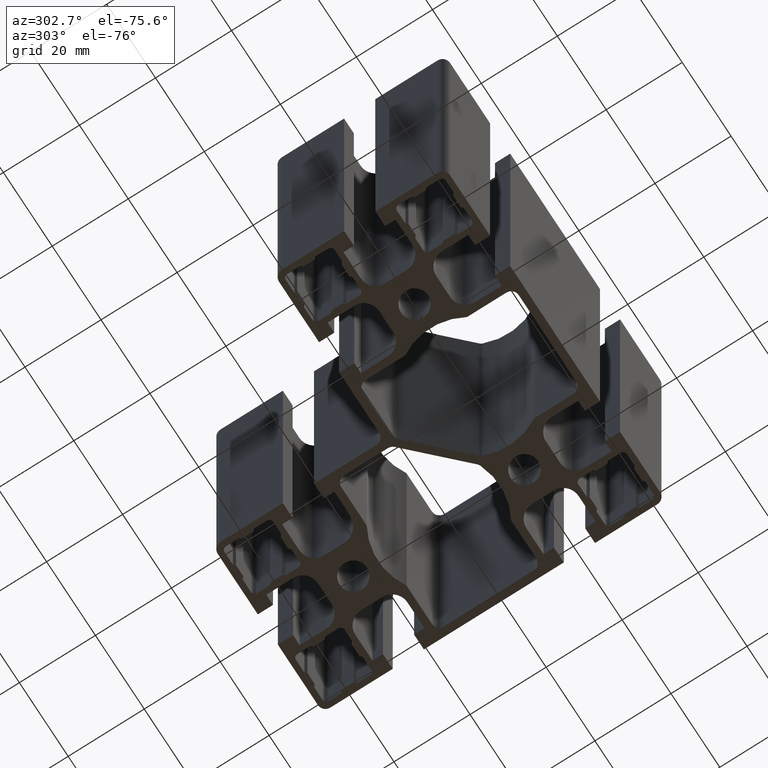
[diagram: clean part render]
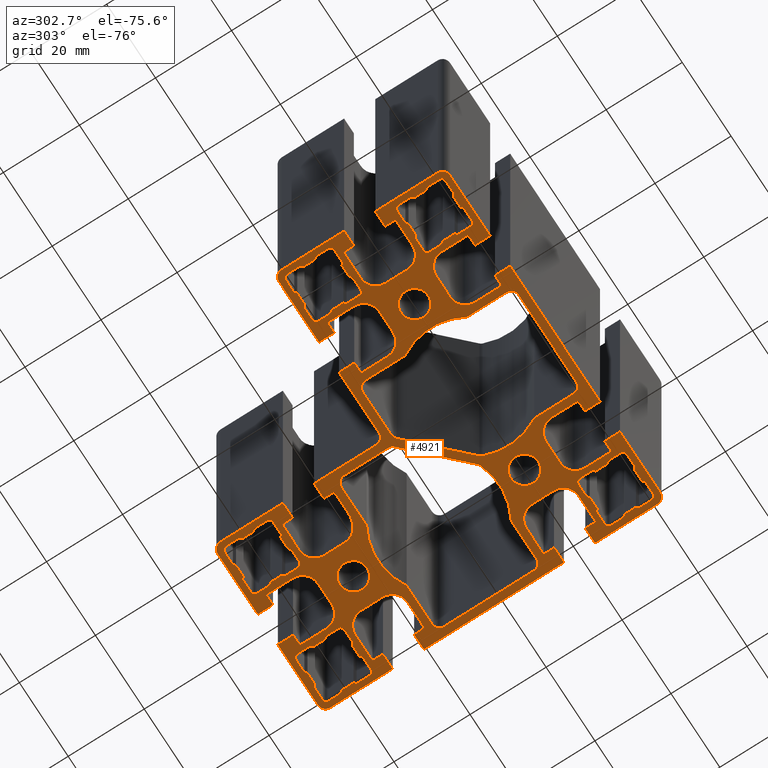
[diagram: same view with one face highlighted and labeled with its STEP entity id]
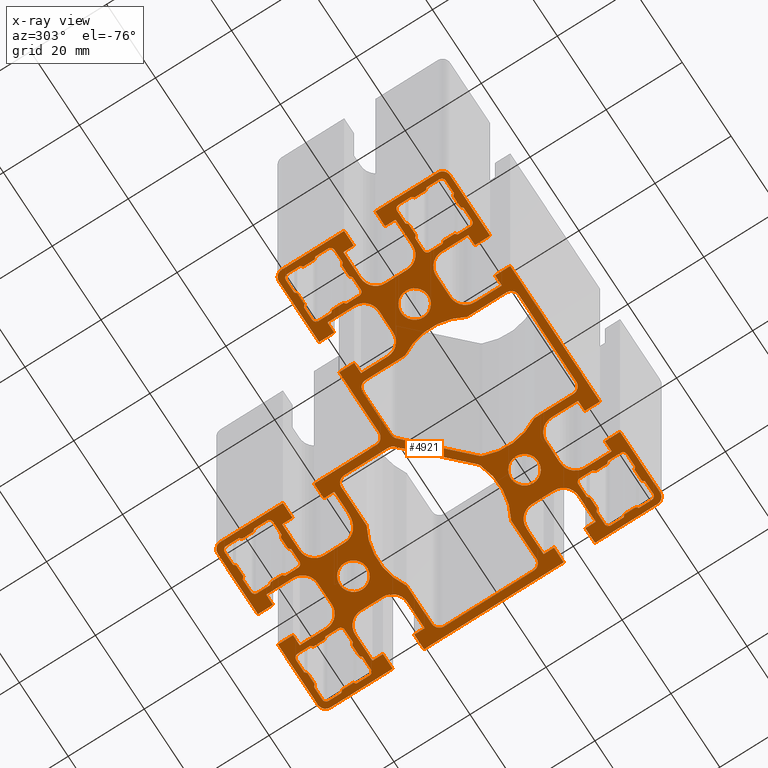
[diagram: x-ray of the same camera — body ghosted, the highlighted face saturated]
A machine part, auxiliary view. The second image highlights one B-rep face of the part: STEP entity #4921.
The next image is the same camera in x-ray: the body ghosted, the highlighted face saturated — about 0% of this face is hidden behind the body in this view.
In plain terms, the highlighted planar face has unit normal (0, 0, 1).
Its self-contained STEP definition (entity closure, byte-faithful):
#18=FACE_BOUND('',#615,.T.);
#19=FACE_BOUND('',#616,.T.);
#20=FACE_BOUND('',#617,.T.);
#21=FACE_BOUND('',#618,.T.);
#22=FACE_BOUND('',#619,.T.);
#23=FACE_BOUND('',#620,.T.);
#24=FACE_BOUND('',#621,.T.);
#25=FACE_BOUND('',#622,.T.);
#26=FACE_BOUND('',#623,.T.);
#27=FACE_BOUND('',#624,.T.);
#38=CIRCLE('',#5020,2.);
#40=CIRCLE('',#5024,2.);
#42=CIRCLE('',#5028,16.);
#44=CIRCLE('',#5032,2.);
#46=CIRCLE('',#5036,2.);
#48=CIRCLE('',#5040,2.);
#50=CIRCLE('',#5043,16.);
#52=CIRCLE('',#5046,2.);
#54=CIRCLE('',#5050,2.);
#56=CIRCLE('',#5054,16.);
#58=CIRCLE('',#5058,2.);
#60=CIRCLE('',#5062,2.);
#62=CIRCLE('',#5066,16.);
#64=CIRCLE('',#5069,2.);
#66=CIRCLE('',#5077,0.999999999999947);
#68=CIRCLE('',#5085,0.999999999999947);
#70=CIRCLE('',#5093,0.999999999999947);
#72=CIRCLE('',#5101,0.999999999999947);
#74=CIRCLE('',#5109,0.999999999999947);
#76=CIRCLE('',#5117,0.999999999999947);
#78=CIRCLE('',#5125,0.999999999999947);
#80=CIRCLE('',#5133,0.999999999999947);
#82=CIRCLE('',#5141,0.999999999999947);
#84=CIRCLE('',#5149,0.999999999999947);
#86=CIRCLE('',#5157,0.999999999999947);
#88=CIRCLE('',#5165,0.999999999999947);
#90=CIRCLE('',#5173,0.999999999999947);
#92=CIRCLE('',#5181,0.999999999999947);
#94=CIRCLE('',#5189,0.999999999999947);
#96=CIRCLE('',#5197,0.999999999999947);
#98=CIRCLE('',#5205,0.999999999999947);
#100=CIRCLE('',#5213,0.999999999999947);
#102=CIRCLE('',#5221,0.999999999999947);
#104=CIRCLE('',#5229,0.999999999999947);
#106=CIRCLE('',#5233,3.6);
#108=CIRCLE('',#5236,3.6);
#110=CIRCLE('',#5239,3.6);
#112=CIRCLE('',#5242,4.);
#113=CIRCLE('',#5243,4.);
#114=CIRCLE('',#5244,2.);
#115=CIRCLE('',#5245,4.);
#116=CIRCLE('',#5246,4.);
#117=CIRCLE('',#5247,4.);
#118=CIRCLE('',#5248,4.);
#119=CIRCLE('',#5249,2.);
#120=CIRCLE('',#5250,4.);
#121=CIRCLE('',#5251,4.);
#122=CIRCLE('',#5252,4.);
#123=CIRCLE('',#5253,4.);
#124=CIRCLE('',#5254,2.);
#125=CIRCLE('',#5255,4.);
#126=CIRCLE('',#5256,4.);
#127=CIRCLE('',#5257,2.);
#128=CIRCLE('',#5258,4.);
#129=CIRCLE('',#5259,4.);
#130=CIRCLE('',#5260,2.);
#131=CIRCLE('',#5261,6.1);
#132=CIRCLE('',#5262,4.);
#133=CIRCLE('',#5263,4.);
#134=CIRCLE('',#5264,2.);
#367=FACE_OUTER_BOUND('',#614,.T.);
#614=EDGE_LOOP('',(#3732,#3733,#3734,#3735,#3736,#3737,#3738,#3739,#3740,
#3741,#3742,#3743,#3744,#3745,#3746,#3747,#3748,#3749,#3750,#3751,#3752,
#3753,#3754,#3755,#3756,#3757,#3758,#3759,#3760,#3761,#3762,#3763,#3764,
#3765,#3766,#3767,#3768,#3769,#3770,#3771,#3772,#3773,#3774,#3775,#3776,
#3777,#3778,#3779,#3780,#3781,#3782,#3783,#3784,#3785,#3786,#3787,#3788,
#3789,#3790,#3791,#3792,#3793,#3794,#3795,#3796,#3797,#3798,#3799,#3800,
#3801,#3802,#3803,#3804,#3805,#3806,#3807,#3808,#3809,#3810,#3811,#3812,
#3813,#3814,#3815,#3816,#3817,#3818,#3819,#3820,#3821,#3822,#3823,#3824));
#615=EDGE_LOOP('',(#3825,#3826,#3827,#3828,#3829,#3830,#3831,#3832,#3833,
#3834,#3835,#3836,#3837));
#616=EDGE_LOOP('',(#3838,#3839,#3840,#3841,#3842,#3843,#3844,#3845,#3846,
#3847,#3848,#3849,#3850));
#617=EDGE_LOOP('',(#3851,#3852,#3853,#3854,#3855,#3856,#3857,#3858,#3859,
#3860,#3861,#3862,#3863,#3864,#3865,#3866,#3867,#3868,#3869,#3870,#3871,
#3872,#3873,#3874));
#618=EDGE_LOOP('',(#3875,#3876,#3877,#3878,#3879,#3880,#3881,#3882,#3883,
#3884,#3885,#3886,#3887,#3888,#3889,#3890,#3891,#3892,#3893,#3894,#3895,
#3896,#3897,#3898));
#619=EDGE_LOOP('',(#3899,#3900,#3901,#3902,#3903,#3904,#3905,#3906,#3907,
#3908,#3909,#3910,#3911,#3912,#3913,#3914,#3915,#3916,#3917,#3918,#3919,
#3920,#3921,#3922));
#620=EDGE_LOOP('',(#3923,#3924,#3925,#3926,#3927,#3928,#3929,#3930,#3931,
#3932,#3933,#3934,#3935,#3936,#3937,#3938,#3939,#3940,#3941,#3942,#3943,
#3944,#3945,#3946));
#621=EDGE_LOOP('',(#3947,#3948,#3949,#3950,#3951,#3952,#3953,#3954,#3955,
#3956,#3957,#3958,#3959,#3960,#3961,#3962,#3963,#3964,#3965,#3966,#3967,
#3968,#3969,#3970));
#622=EDGE_LOOP('',(#3971));
#623=EDGE_LOOP('',(#3972));
#624=EDGE_LOOP('',(#3973));
#730=LINE('',#6721,#1333);
#734=LINE('',#6733,#1337);
#738=LINE('',#6745,#1341);
#742=LINE('',#6757,#1345);
#746=LINE('',#6769,#1349);
#750=LINE('',#6781,#1353);
#756=LINE('',#6805,#1359);
#760=LINE('',#6817,#1363);
#764=LINE('',#6829,#1367);
#768=LINE('',#6841,#1371);
#772=LINE('',#6853,#1375);
#777=LINE('',#6870,#1380);
#780=LINE('',#6877,#1383);
#783=LINE('',#6883,#1386);
#786=LINE('',#6889,#1389);
#789=LINE('',#6895,#1392);
#793=LINE('',#6907,#1396);
#796=LINE('',#6913,#1399);
#799=LINE('',#6919,#1402);
#802=LINE('',#6925,#1405);
#805=LINE('',#6931,#1408);
#809=LINE('',#6943,#1412);
#812=LINE('',#6949,#1415);
#815=LINE('',#6955,#1418);
#818=LINE('',#6961,#1421);
#821=LINE('',#6967,#1424);
#825=LINE('',#6979,#1428);
#828=LINE('',#6985,#1431);
#831=LINE('',#6991,#1434);
#834=LINE('',#6997,#1437);
#837=LINE('',#7003,#1440);
#841=LINE('',#7014,#1444);
#844=LINE('',#7021,#1447);
#847=LINE('',#7027,#1450);
#850=LINE('',#7033,#1453);
#853=LINE('',#7039,#1456);
#857=LINE('',#7051,#1460);
#860=LINE('',#7057,#1463);
#863=LINE('',#7063,#1466);
#866=LINE('',#7069,#1469);
#869=LINE('',#7075,#1472);
#873=LINE('',#7087,#1476);
#876=LINE('',#7093,#1479);
#879=LINE('',#7099,#1482);
#882=LINE('',#7105,#1485);
#885=LINE('',#7111,#1488);
#889=LINE('',#7123,#1492);
#892=LINE('',#7129,#1495);
#895=LINE('',#7135,#1498);
#898=LINE('',#7141,#1501);
#901=LINE('',#7147,#1504);
#905=LINE('',#7158,#1508);
#908=LINE('',#7165,#1511);
#911=LINE('',#7171,#1514);
#914=LINE('',#7177,#1517);
#917=LINE('',#7183,#1520);
#921=LINE('',#7195,#1524);
#924=LINE('',#7201,#1527);
#927=LINE('',#7207,#1530);
#930=LINE('',#7213,#1533);
#933=LINE('',#7219,#1536);
#937=LINE('',#7231,#1540);
#940=LINE('',#7237,#1543);
#943=LINE('',#7243,#1546);
#946=LINE('',#7249,#1549);
#949=LINE('',#7255,#1552);
#953=LINE('',#7267,#1556);
#956=LINE('',#7273,#1559);
#959=LINE('',#7279,#1562);
#962=LINE('',#7285,#1565);
#965=LINE('',#7291,#1568);
#969=LINE('',#7302,#1572);
#972=LINE('',#7309,#1575);
#975=LINE('',#7315,#1578);
#978=LINE('',#7321,#1581);
#981=LINE('',#7327,#1584);
#985=LINE('',#7339,#1588);
#988=LINE('',#7345,#1591);
#991=LINE('',#7351,#1594);
#994=LINE('',#7357,#1597);
#997=LINE('',#7363,#1600);
#1001=LINE('',#7375,#1604);
#1004=LINE('',#7381,#1607);
#1007=LINE('',#7387,#1610);
#1010=LINE('',#7393,#1613);
#1013=LINE('',#7399,#1616);
#1017=LINE('',#7411,#1620);
#1020=LINE('',#7417,#1623);
#1023=LINE('',#7423,#1626);
#1026=LINE('',#7429,#1629);
#1029=LINE('',#7435,#1632);
#1033=LINE('',#7446,#1636);
#1036=LINE('',#7453,#1639);
#1039=LINE('',#7459,#1642);
#1042=LINE('',#7465,#1645);
#1045=LINE('',#7471,#1648);
#1049=LINE('',#7483,#1652);
#1052=LINE('',#7489,#1655);
#1055=LINE('',#7495,#1658);
#1058=LINE('',#7501,#1661);
#1061=LINE('',#7507,#1664);
#1065=LINE('',#7519,#1668);
#1068=LINE('',#7525,#1671);
#1071=LINE('',#7531,#1674);
#1074=LINE('',#7537,#1677);
#1077=LINE('',#7543,#1680);
#1081=LINE('',#7555,#1684);
#1084=LINE('',#7561,#1687);
#1087=LINE('',#7567,#1690);
#1090=LINE('',#7573,#1693);
#1093=LINE('',#7579,#1696);
#1097=LINE('',#7590,#1700);
#1099=LINE('',#7610,#1702);
#1100=LINE('',#7612,#1703);
#1101=LINE('',#7614,#1704);
#1102=LINE('',#7616,#1705);
#1103=LINE('',#7620,#1706);
#1104=LINE('',#7624,#1707);
#1105=LINE('',#7626,#1708);
#1106=LINE('',#7628,#1709);
#1107=LINE('',#7630,#1710);
#1108=LINE('',#7634,#1711);
#1109=LINE('',#7636,#1712);
#1110=LINE('',#7638,#1713);
#1111=LINE('',#7640,#1714);
#1112=LINE('',#7644,#1715);
#1113=LINE('',#7648,#1716);
#1114=LINE('',#7650,#1717);
#1115=LINE('',#7652,#1718);
#1116=LINE('',#7654,#1719);
#1117=LINE('',#7656,#1720);
#1118=LINE('',#7658,#1721);
#1119=LINE('',#7660,#1722);
#1120=LINE('',#7664,#1723);
#1121=LINE('',#7668,#1724);
#1122=LINE('',#7670,#1725);
#1123=LINE('',#7672,#1726);
#1124=LINE('',#7674,#1727);
#1125=LINE('',#7678,#1728);
#1126=LINE('',#7680,#1729);
#1127=LINE('',#7682,#1730);
#1128=LINE('',#7684,#1731);
#1129=LINE('',#7688,#1732);
#1130=LINE('',#7692,#1733);
#1131=LINE('',#7694,#1734);
#1132=LINE('',#7696,#1735);
#1133=LINE('',#7698,#1736);
#1134=LINE('',#7700,#1737);
#1135=LINE('',#7702,#1738);
#1136=LINE('',#7704,#1739);
#1137=LINE('',#7708,#1740);
#1138=LINE('',#7712,#1741);
#1139=LINE('',#7714,#1742);
#1140=LINE('',#7716,#1743);
#1141=LINE('',#7718,#1744);
#1142=LINE('',#7722,#1745);
#1143=LINE('',#7724,#1746);
#1144=LINE('',#7726,#1747);
#1145=LINE('',#7728,#1748);
#1146=LINE('',#7732,#1749);
#1147=LINE('',#7736,#1750);
#1148=LINE('',#7738,#1751);
#1149=LINE('',#7740,#1752);
#1150=LINE('',#7742,#1753);
#1151=LINE('',#7746,#1754);
#1152=LINE('',#7748,#1755);
#1153=LINE('',#7750,#1756);
#1154=LINE('',#7752,#1757);
#1155=LINE('',#7756,#1758);
#1156=LINE('',#7760,#1759);
#1157=LINE('',#7762,#1760);
#1158=LINE('',#7764,#1761);
#1159=LINE('',#7766,#1762);
#1160=LINE('',#7770,#1763);
#1161=LINE('',#7772,#1764);
#1162=LINE('',#7774,#1765);
#1163=LINE('',#7776,#1766);
#1164=LINE('',#7782,#1767);
#1165=LINE('',#7786,#1768);
#1166=LINE('',#7788,#1769);
#1167=LINE('',#7790,#1770);
#1168=LINE('',#7792,#1771);
#1333=VECTOR('',#5387,10.3184659140588);
#1337=VECTOR('',#5399,23.5);
#1341=VECTOR('',#5411,10.3184659140291);
#1345=VECTOR('',#5423,10.3184659139884);
#1349=VECTOR('',#5435,11.5073593128805);
#1353=VECTOR('',#5447,18.6691738298285);
#1359=VECTOR('',#5473,11.5073593128811);
#1363=VECTOR('',#5485,10.318465914023);
#1367=VECTOR('',#5497,10.3184659140227);
#1371=VECTOR('',#5509,23.4999999999999);
#1375=VECTOR('',#5521,10.3184659140231);
#1380=VECTOR('',#5540,18.6691738298286);
#1383=VECTOR('',#5545,0.707106781186583);
#1386=VECTOR('',#5550,3.00000000000112);
#1389=VECTOR('',#5555,0.707106781186555);
#1392=VECTOR('',#5560,3.37500000000041);
#1396=VECTOR('',#5572,3.3750000000004);
#1399=VECTOR('',#5577,0.707106781187612);
#1402=VECTOR('',#5582,2.99999999999964);
#1405=VECTOR('',#5587,0.70710678118761);
#1408=VECTOR('',#5592,3.37499999999794);
#1412=VECTOR('',#5604,3.37500000000228);
#1415=VECTOR('',#5609,0.70710678118563);
#1418=VECTOR('',#5614,2.99999999999781);
#1421=VECTOR('',#5619,0.707106781185618);
#1424=VECTOR('',#5624,3.37500000000061);
#1428=VECTOR('',#5636,3.37499999999984);
#1431=VECTOR('',#5641,0.707106781184366);
#1434=VECTOR('',#5646,3.00000000000074);
#1437=VECTOR('',#5651,0.707106781184363);
#1440=VECTOR('',#5656,3.375000000002);
#1444=VECTOR('',#5668,3.37499999999783);
#1447=VECTOR('',#5673,0.707106781186591);
#1450=VECTOR('',#5678,3.00000000000219);
#1453=VECTOR('',#5683,0.707106781186552);
#1456=VECTOR('',#5688,3.37500000000113);
#1460=VECTOR('',#5700,3.37499999999896);
#1463=VECTOR('',#5705,0.707106781187632);
#1466=VECTOR('',#5710,3.00000000000234);
#1469=VECTOR('',#5715,0.70710678118763);
#1472=VECTOR('',#5720,3.37499999999723);
#1476=VECTOR('',#5732,3.37500000000311);
#1479=VECTOR('',#5737,0.707106781186444);
#1482=VECTOR('',#5742,2.99999999999778);
#1485=VECTOR('',#5747,0.707106781186445);
#1488=VECTOR('',#5752,3.37499999999865);
#1492=VECTOR('',#5764,3.3750000000018);
#1495=VECTOR('',#5769,0.707106781184372);
#1498=VECTOR('',#5774,2.99999999999795);
#1501=VECTOR('',#5779,0.70710678118437);
#1504=VECTOR('',#5784,3.37500000000341);
#1508=VECTOR('',#5796,3.37499999999604);
#1511=VECTOR('',#5801,0.707106781186557);
#1514=VECTOR('',#5806,3.00000000000106);
#1517=VECTOR('',#5811,0.707106781186564);
#1520=VECTOR('',#5816,3.37500000000168);
#1524=VECTOR('',#5828,3.37499999999842);
#1527=VECTOR('',#5833,0.707106781186551);
#1530=VECTOR('',#5838,3.00000000000408);
#1533=VECTOR('',#5843,0.707106781186546);
#1536=VECTOR('',#5848,3.37499999999755);
#1540=VECTOR('',#5860,3.37500000000256);
#1543=VECTOR('',#5865,0.707106781186522);
#1546=VECTOR('',#5870,2.99999999999883);
#1549=VECTOR('',#5875,0.707106781186482);
#1552=VECTOR('',#5880,3.37499999999877);
#1556=VECTOR('',#5892,3.37500000000136);
#1559=VECTOR('',#5897,0.707106781186544);
#1562=VECTOR('',#5902,2.99999999999596);
#1565=VECTOR('',#5907,0.707106781186546);
#1568=VECTOR('',#5912,3.37500000000277);
#1572=VECTOR('',#5924,3.37499999999735);
#1575=VECTOR('',#5929,0.707106781186537);
#1578=VECTOR('',#5934,2.99999999999961);
#1581=VECTOR('',#5939,0.707106781186537);
#1584=VECTOR('',#5944,3.37500000000174);
#1588=VECTOR('',#5956,3.37499999999843);
#1591=VECTOR('',#5961,0.707106781186684);
#1594=VECTOR('',#5966,3.00000000000222);
#1597=VECTOR('',#5971,0.707106781186684);
#1600=VECTOR('',#5976,3.37499999999818);
#1604=VECTOR('',#5988,3.37500000000122);
#1607=VECTOR('',#5993,0.707106781185138);
#1610=VECTOR('',#5998,3.00000000000117);
#1613=VECTOR('',#6003,0.707106781185125);
#1616=VECTOR('',#6008,3.37499999999983);
#1620=VECTOR('',#6020,3.37500000000028);
#1623=VECTOR('',#6025,0.707106781186557);
#1626=VECTOR('',#6030,2.99999999999765);
#1629=VECTOR('',#6035,0.707106781186533);
#1632=VECTOR('',#6040,3.3750000000011);
#1636=VECTOR('',#6052,3.3749999999989);
#1639=VECTOR('',#6057,0.707106781185605);
#1642=VECTOR('',#6062,3.00000000000135);
#1645=VECTOR('',#6067,0.707106781185616);
#1648=VECTOR('',#6072,3.3750000000011);
#1652=VECTOR('',#6084,3.37499999999911);
#1655=VECTOR('',#6089,0.707106781186683);
#1658=VECTOR('',#6094,3.00000000000118);
#1661=VECTOR('',#6099,0.70710678118667);
#1664=VECTOR('',#6104,3.37499999999903);
#1668=VECTOR('',#6116,3.37500000000095);
#1671=VECTOR('',#6121,0.707106781185627);
#1674=VECTOR('',#6126,3.00000000000063);
#1677=VECTOR('',#6131,0.707106781185628);
#1680=VECTOR('',#6136,3.37499999999994);
#1684=VECTOR('',#6148,3.37500000000007);
#1687=VECTOR('',#6153,0.707106781186533);
#1690=VECTOR('',#6158,2.9999999999988);
#1693=VECTOR('',#6163,0.707106781186528);
#1696=VECTOR('',#6168,3.37500000000063);
#1700=VECTOR('',#6180,3.3749999999991);
#1702=VECTOR('',#6202,16.4000000000001);
#1703=VECTOR('',#6203,4.00000000000002);
#1704=VECTOR('',#6204,2.74999999999987);
#1705=VECTOR('',#6205,7.0000000000001);
#1706=VECTOR('',#6208,5.69999999999993);
#1707=VECTOR('',#6211,7.00000000000008);
#1708=VECTOR('',#6212,2.75000000000001);
#1709=VECTOR('',#6213,4.00000000000002);
#1710=VECTOR('',#6214,16.4);
#1711=VECTOR('',#6217,16.4);
#1712=VECTOR('',#6218,3.99999999999996);
#1713=VECTOR('',#6219,2.74999999999979);
#1714=VECTOR('',#6220,7.00000000000004);
#1715=VECTOR('',#6223,5.69999999999971);
#1716=VECTOR('',#6226,7.00000000000004);
#1717=VECTOR('',#6227,2.74999999999999);
#1718=VECTOR('',#6228,3.99999999999997);
#1719=VECTOR('',#6229,36.8);
#1720=VECTOR('',#6230,3.99999999999998);
#1721=VECTOR('',#6231,2.75000000000001);
#1722=VECTOR('',#6232,7.00000000000005);
#1723=VECTOR('',#6235,5.70000000000006);
#1724=VECTOR('',#6238,7.00000000000004);
#1725=VECTOR('',#6239,2.75000000000011);
#1726=VECTOR('',#6240,3.99999999999999);
#1727=VECTOR('',#6241,16.4);
#1728=VECTOR('',#6244,16.4000000000001);
#1729=VECTOR('',#6245,4.);
#1730=VECTOR('',#6246,2.75000000000012);
#1731=VECTOR('',#6247,6.99999999999992);
#1732=VECTOR('',#6250,5.69999999999993);
#1733=VECTOR('',#6253,6.99999999999991);
#1734=VECTOR('',#6254,2.74999999999989);
#1735=VECTOR('',#6255,4.);
#1736=VECTOR('',#6256,36.8000000000001);
#1737=VECTOR('',#6257,4.);
#1738=VECTOR('',#6258,2.75000000000011);
#1739=VECTOR('',#6259,6.9999999999999);
#1740=VECTOR('',#6262,5.69999999999993);
#1741=VECTOR('',#6265,6.9999999999999);
#1742=VECTOR('',#6266,2.74999999999989);
#1743=VECTOR('',#6267,4.);
#1744=VECTOR('',#6268,16.4);
#1745=VECTOR('',#6271,16.4);
#1746=VECTOR('',#6272,3.99999999999999);
#1747=VECTOR('',#6273,2.75000000000011);
#1748=VECTOR('',#6274,7.00000000000031);
#1749=VECTOR('',#6277,5.70000000000004);
#1750=VECTOR('',#6280,7.00000000000031);
#1751=VECTOR('',#6281,2.75);
#1752=VECTOR('',#6282,3.99999999999999);
#1753=VECTOR('',#6283,16.4000000000001);
#1754=VECTOR('',#6286,16.3999999999999);
#1755=VECTOR('',#6287,4.);
#1756=VECTOR('',#6288,2.74999999999988);
#1757=VECTOR('',#6289,7.00000000000002);
#1758=VECTOR('',#6292,5.69999999999993);
#1759=VECTOR('',#6295,7.00000000000001);
#1760=VECTOR('',#6296,2.75000000000014);
#1761=VECTOR('',#6297,3.99999999999999);
#1762=VECTOR('',#6298,16.4);
#1763=VECTOR('',#6301,16.3999999999999);
#1764=VECTOR('',#6302,3.99999999999999);
#1765=VECTOR('',#6303,2.75000000000001);
#1766=VECTOR('',#6304,5.90000000000136);
#1767=VECTOR('',#6309,5.38885438200024);
#1768=VECTOR('',#6312,7.00000000000021);
#1769=VECTOR('',#6313,2.74999999999978);
#1770=VECTOR('',#6314,3.99999999999999);
#1771=VECTOR('',#6315,16.4000000000001);
#1936=VERTEX_POINT('',#6718);
#1937=VERTEX_POINT('',#6720);
#1939=VERTEX_POINT('',#6726);
#1941=VERTEX_POINT('',#6732);
#1943=VERTEX_POINT('',#6738);
#1945=VERTEX_POINT('',#6744);
#1947=VERTEX_POINT('',#6750);
#1949=VERTEX_POINT('',#6756);
#1951=VERTEX_POINT('',#6762);
#1953=VERTEX_POINT('',#6768);
#1955=VERTEX_POINT('',#6774);
#1957=VERTEX_POINT('',#6780);
#1959=VERTEX_POINT('',#6786);
#1962=VERTEX_POINT('',#6796);
#1963=VERTEX_POINT('',#6798);
#1965=VERTEX_POINT('',#6804);
#1967=VERTEX_POINT('',#6810);
#1969=VERTEX_POINT('',#6816);
#1971=VERTEX_POINT('',#6822);
#1973=VERTEX_POINT('',#6828);
#1975=VERTEX_POINT('',#6834);
#1977=VERTEX_POINT('',#6840);
#1979=VERTEX_POINT('',#6846);
#1981=VERTEX_POINT('',#6852);
#1983=VERTEX_POINT('',#6858);
#1985=VERTEX_POINT('',#6864);
#1988=VERTEX_POINT('',#6874);
#1989=VERTEX_POINT('',#6876);
#1991=VERTEX_POINT('',#6882);
#1993=VERTEX_POINT('',#6888);
#1995=VERTEX_POINT('',#6894);
#1997=VERTEX_POINT('',#6900);
#1999=VERTEX_POINT('',#6906);
#2001=VERTEX_POINT('',#6912);
#2003=VERTEX_POINT('',#6918);
#2005=VERTEX_POINT('',#6924);
#2007=VERTEX_POINT('',#6930);
#2009=VERTEX_POINT('',#6936);
#2011=VERTEX_POINT('',#6942);
#2013=VERTEX_POINT('',#6948);
#2015=VERTEX_POINT('',#6954);
#2017=VERTEX_POINT('',#6960);
#2019=VERTEX_POINT('',#6966);
#2021=VERTEX_POINT('',#6972);
#2023=VERTEX_POINT('',#6978);
#2025=VERTEX_POINT('',#6984);
#2027=VERTEX_POINT('',#6990);
#2029=VERTEX_POINT('',#6996);
#2031=VERTEX_POINT('',#7002);
#2033=VERTEX_POINT('',#7008);
#2036=VERTEX_POINT('',#7018);
#2037=VERTEX_POINT('',#7020);
#2039=VERTEX_POINT('',#7026);
#2041=VERTEX_POINT('',#7032);
#2043=VERTEX_POINT('',#7038);
#2045=VERTEX_POINT('',#7044);
#2047=VERTEX_POINT('',#7050);
#2049=VERTEX_POINT('',#7056);
#2051=VERTEX_POINT('',#7062);
#2053=VERTEX_POINT('',#7068);
#2055=VERTEX_POINT('',#7074);
#2057=VERTEX_POINT('',#7080);
#2059=VERTEX_POINT('',#7086);
#2061=VERTEX_POINT('',#7092);
#2063=VERTEX_POINT('',#7098);
#2065=VERTEX_POINT('',#7104);
#2067=VERTEX_POINT('',#7110);
#2069=VERTEX_POINT('',#7116);
#2071=VERTEX_POINT('',#7122);
#2073=VERTEX_POINT('',#7128);
#2075=VERTEX_POINT('',#7134);
#2077=VERTEX_POINT('',#7140);
#2079=VERTEX_POINT('',#7146);
#2081=VERTEX_POINT('',#7152);
#2084=VERTEX_POINT('',#7162);
#2085=VERTEX_POINT('',#7164);
#2087=VERTEX_POINT('',#7170);
#2089=VERTEX_POINT('',#7176);
#2091=VERTEX_POINT('',#7182);
#2093=VERTEX_POINT('',#7188);
#2095=VERTEX_POINT('',#7194);
#2097=VERTEX_POINT('',#7200);
#2099=VERTEX_POINT('',#7206);
#2101=VERTEX_POINT('',#7212);
#2103=VERTEX_POINT('',#7218);
#2105=VERTEX_POINT('',#7224);
#2107=VERTEX_POINT('',#7230);
#2109=VERTEX_POINT('',#7236);
#2111=VERTEX_POINT('',#7242);
#2113=VERTEX_POINT('',#7248);
#2115=VERTEX_POINT('',#7254);
#2117=VERTEX_POINT('',#7260);
#2119=VERTEX_POINT('',#7266);
#2121=VERTEX_POINT('',#7272);
#2123=VERTEX_POINT('',#7278);
#2125=VERTEX_POINT('',#7284);
#2127=VERTEX_POINT('',#7290);
#2129=VERTEX_POINT('',#7296);
#2132=VERTEX_POINT('',#7306);
#2133=VERTEX_POINT('',#7308);
#2135=VERTEX_POINT('',#7314);
#2137=VERTEX_POINT('',#7320);
#2139=VERTEX_POINT('',#7326);
#2141=VERTEX_POINT('',#7332);
#2143=VERTEX_POINT('',#7338);
#2145=VERTEX_POINT('',#7344);
#2147=VERTEX_POINT('',#7350);
#2149=VERTEX_POINT('',#7356);
#2151=VERTEX_POINT('',#7362);
#2153=VERTEX_POINT('',#7368);
#2155=VERTEX_POINT('',#7374);
#2157=VERTEX_POINT('',#7380);
#2159=VERTEX_POINT('',#7386);
#2161=VERTEX_POINT('',#7392);
#2163=VERTEX_POINT('',#7398);
#2165=VERTEX_POINT('',#7404);
#2167=VERTEX_POINT('',#7410);
#2169=VERTEX_POINT('',#7416);
#2171=VERTEX_POINT('',#7422);
#2173=VERTEX_POINT('',#7428);
#2175=VERTEX_POINT('',#7434);
#2177=VERTEX_POINT('',#7440);
#2180=VERTEX_POINT('',#7450);
#2181=VERTEX_POINT('',#7452);
#2183=VERTEX_POINT('',#7458);
#2185=VERTEX_POINT('',#7464);
#2187=VERTEX_POINT('',#7470);
#2189=VERTEX_POINT('',#7476);
#2191=VERTEX_POINT('',#7482);
#2193=VERTEX_POINT('',#7488);
#2195=VERTEX_POINT('',#7494);
#2197=VERTEX_POINT('',#7500);
#2199=VERTEX_POINT('',#7506);
#2201=VERTEX_POINT('',#7512);
#2203=VERTEX_POINT('',#7518);
#2205=VERTEX_POINT('',#7524);
#2207=VERTEX_POINT('',#7530);
#2209=VERTEX_POINT('',#7536);
#2211=VERTEX_POINT('',#7542);
#2213=VERTEX_POINT('',#7548);
#2215=VERTEX_POINT('',#7554);
#2217=VERTEX_POINT('',#7560);
#2219=VERTEX_POINT('',#7566);
#2221=VERTEX_POINT('',#7572);
#2223=VERTEX_POINT('',#7578);
#2225=VERTEX_POINT('',#7584);
#2227=VERTEX_POINT('',#7593);
#2229=VERTEX_POINT('',#7598);
#2231=VERTEX_POINT('',#7603);
#2233=VERTEX_POINT('',#7608);
#2234=VERTEX_POINT('',#7609);
#2235=VERTEX_POINT('',#7611);
#2236=VERTEX_POINT('',#7613);
#2237=VERTEX_POINT('',#7615);
#2238=VERTEX_POINT('',#7617);
#2239=VERTEX_POINT('',#7619);
#2240=VERTEX_POINT('',#7621);
#2241=VERTEX_POINT('',#7623);
#2242=VERTEX_POINT('',#7625);
#2243=VERTEX_POINT('',#7627);
#2244=VERTEX_POINT('',#7629);
#2245=VERTEX_POINT('',#7631);
#2246=VERTEX_POINT('',#7633);
#2247=VERTEX_POINT('',#7635);
#2248=VERTEX_POINT('',#7637);
#2249=VERTEX_POINT('',#7639);
#2250=VERTEX_POINT('',#7641);
#2251=VERTEX_POINT('',#7643);
#2252=VERTEX_POINT('',#7645);
#2253=VERTEX_POINT('',#7647);
#2254=VERTEX_POINT('',#7649);
#2255=VERTEX_POINT('',#7651);
#2256=VERTEX_POINT('',#7653);
#2257=VERTEX_POINT('',#7655);
#2258=VERTEX_POINT('',#7657);
#2259=VERTEX_POINT('',#7659);
#2260=VERTEX_POINT('',#7661);
#2261=VERTEX_POINT('',#7663);
#2262=VERTEX_POINT('',#7665);
#2263=VERTEX_POINT('',#7667);
#2264=VERTEX_POINT('',#7669);
#2265=VERTEX_POINT('',#7671);
#2266=VERTEX_POINT('',#7673);
#2267=VERTEX_POINT('',#7675);
#2268=VERTEX_POINT('',#7677);
#2269=VERTEX_POINT('',#7679);
#2270=VERTEX_POINT('',#7681);
#2271=VERTEX_POINT('',#7683);
#2272=VERTEX_POINT('',#7685);
#2273=VERTEX_POINT('',#7687);
#2274=VERTEX_POINT('',#7689);
#2275=VERTEX_POINT('',#7691);
#2276=VERTEX_POINT('',#7693);
#2277=VERTEX_POINT('',#7695);
#2278=VERTEX_POINT('',#7697);
#2279=VERTEX_POINT('',#7699);
#2280=VERTEX_POINT('',#7701);
#2281=VERTEX_POINT('',#7703);
#2282=VERTEX_POINT('',#7705);
#2283=VERTEX_POINT('',#7707);
#2284=VERTEX_POINT('',#7709);
#2285=VERTEX_POINT('',#7711);
#2286=VERTEX_POINT('',#7713);
#2287=VERTEX_POINT('',#7715);
#2288=VERTEX_POINT('',#7717);
#2289=VERTEX_POINT('',#7719);
#2290=VERTEX_POINT('',#7721);
#2291=VERTEX_POINT('',#7723);
#2292=VERTEX_POINT('',#7725);
#2293=VERTEX_POINT('',#7727);
#2294=VERTEX_POINT('',#7729);
#2295=VERTEX_POINT('',#7731);
#2296=VERTEX_POINT('',#7733);
#2297=VERTEX_POINT('',#7735);
#2298=VERTEX_POINT('',#7737);
#2299=VERTEX_POINT('',#7739);
#2300=VERTEX_POINT('',#7741);
#2301=VERTEX_POINT('',#7743);
#2302=VERTEX_POINT('',#7745);
#2303=VERTEX_POINT('',#7747);
#2304=VERTEX_POINT('',#7749);
#2305=VERTEX_POINT('',#7751);
#2306=VERTEX_POINT('',#7753);
#2307=VERTEX_POINT('',#7755);
#2308=VERTEX_POINT('',#7757);
#2309=VERTEX_POINT('',#7759);
#2310=VERTEX_POINT('',#7761);
#2311=VERTEX_POINT('',#7763);
#2312=VERTEX_POINT('',#7765);
#2313=VERTEX_POINT('',#7767);
#2314=VERTEX_POINT('',#7769);
#2315=VERTEX_POINT('',#7771);
#2316=VERTEX_POINT('',#7773);
#2317=VERTEX_POINT('',#7775);
#2318=VERTEX_POINT('',#7777);
#2319=VERTEX_POINT('',#7779);
#2320=VERTEX_POINT('',#7781);
#2321=VERTEX_POINT('',#7783);
#2322=VERTEX_POINT('',#7785);
#2323=VERTEX_POINT('',#7787);
#2324=VERTEX_POINT('',#7789);
#2325=VERTEX_POINT('',#7791);
#2420=EDGE_CURVE('',#1937,#1936,#730,.T.);
#2423=EDGE_CURVE('',#1939,#1937,#38,.T.);
#2426=EDGE_CURVE('',#1941,#1939,#734,.T.);
#2429=EDGE_CURVE('',#1943,#1941,#40,.T.);
#2432=EDGE_CURVE('',#1945,#1943,#738,.T.);
#2435=EDGE_CURVE('',#1947,#1945,#42,.T.);
#2438=EDGE_CURVE('',#1949,#1947,#742,.T.);
#2441=EDGE_CURVE('',#1951,#1949,#44,.T.);
#2444=EDGE_CURVE('',#1953,#1951,#746,.T.);
#2447=EDGE_CURVE('',#1955,#1953,#46,.T.);
#2450=EDGE_CURVE('',#1957,#1955,#750,.T.);
#2453=EDGE_CURVE('',#1959,#1957,#48,.T.);
#2456=EDGE_CURVE('',#1936,#1959,#50,.T.);
#2459=EDGE_CURVE('',#1963,#1962,#52,.T.);
#2462=EDGE_CURVE('',#1965,#1963,#756,.T.);
#2465=EDGE_CURVE('',#1967,#1965,#54,.T.);
#2468=EDGE_CURVE('',#1969,#1967,#760,.T.);
#2471=EDGE_CURVE('',#1971,#1969,#56,.T.);
#2474=EDGE_CURVE('',#1973,#1971,#764,.T.);
#2477=EDGE_CURVE('',#1975,#1973,#58,.T.);
#2480=EDGE_CURVE('',#1977,#1975,#768,.T.);
#2483=EDGE_CURVE('',#1979,#1977,#60,.T.);
#2486=EDGE_CURVE('',#1981,#1979,#772,.T.);
#2489=EDGE_CURVE('',#1983,#1981,#62,.T.);
#2492=EDGE_CURVE('',#1985,#1983,#64,.T.);
#2495=EDGE_CURVE('',#1962,#1985,#777,.T.);
#2498=EDGE_CURVE('',#1989,#1988,#780,.T.);
#2501=EDGE_CURVE('',#1991,#1989,#783,.T.);
#2504=EDGE_CURVE('',#1993,#1991,#786,.T.);
#2507=EDGE_CURVE('',#1995,#1993,#789,.T.);
#2510=EDGE_CURVE('',#1997,#1995,#66,.T.);
#2513=EDGE_CURVE('',#1999,#1997,#793,.T.);
#2516=EDGE_CURVE('',#2001,#1999,#796,.T.);
#2519=EDGE_CURVE('',#2003,#2001,#799,.T.);
#2522=EDGE_CURVE('',#2005,#2003,#802,.T.);
#2525=EDGE_CURVE('',#2007,#2005,#805,.T.);
#2528=EDGE_CURVE('',#2009,#2007,#68,.T.);
#2531=EDGE_CURVE('',#2011,#2009,#809,.T.);
#2534=EDGE_CURVE('',#2013,#2011,#812,.T.);
#2537=EDGE_CURVE('',#2015,#2013,#815,.T.);
#2540=EDGE_CURVE('',#2017,#2015,#818,.T.);
#2543=EDGE_CURVE('',#2019,#2017,#821,.T.);
#2546=EDGE_CURVE('',#2021,#2019,#70,.T.);
#2549=EDGE_CURVE('',#2023,#2021,#825,.T.);
#2552=EDGE_CURVE('',#2025,#2023,#828,.T.);
#2555=EDGE_CURVE('',#2027,#2025,#831,.T.);
#2558=EDGE_CURVE('',#2029,#2027,#834,.T.);
#2561=EDGE_CURVE('',#2031,#2029,#837,.T.);
#2564=EDGE_CURVE('',#2033,#2031,#72,.T.);
#2567=EDGE_CURVE('',#1988,#2033,#841,.T.);
#2570=EDGE_CURVE('',#2037,#2036,#844,.T.);
#2573=EDGE_CURVE('',#2039,#2037,#847,.T.);
#2576=EDGE_CURVE('',#2041,#2039,#850,.T.);
#2579=EDGE_CURVE('',#2043,#2041,#853,.T.);
#2582=EDGE_CURVE('',#2045,#2043,#74,.T.);
#2585=EDGE_CURVE('',#2047,#2045,#857,.T.);
#2588=EDGE_CURVE('',#2049,#2047,#860,.T.);
#2591=EDGE_CURVE('',#2051,#2049,#863,.T.);
#2594=EDGE_CURVE('',#2053,#2051,#866,.T.);
#2597=EDGE_CURVE('',#2055,#2053,#869,.T.);
#2600=EDGE_CURVE('',#2057,#2055,#76,.T.);
#2603=EDGE_CURVE('',#2059,#2057,#873,.T.);
#2606=EDGE_CURVE('',#2061,#2059,#876,.T.);
#2609=EDGE_CURVE('',#2063,#2061,#879,.T.);
#2612=EDGE_CURVE('',#2065,#2063,#882,.T.);
#2615=EDGE_CURVE('',#2067,#2065,#885,.T.);
#2618=EDGE_CURVE('',#2069,#2067,#78,.T.);
#2621=EDGE_CURVE('',#2071,#2069,#889,.T.);
#2624=EDGE_CURVE('',#2073,#2071,#892,.T.);
#2627=EDGE_CURVE('',#2075,#2073,#895,.T.);
#2630=EDGE_CURVE('',#2077,#2075,#898,.T.);
#2633=EDGE_CURVE('',#2079,#2077,#901,.T.);
#2636=EDGE_CURVE('',#2081,#2079,#80,.T.);
#2639=EDGE_CURVE('',#2036,#2081,#905,.T.);
#2642=EDGE_CURVE('',#2085,#2084,#908,.T.);
#2645=EDGE_CURVE('',#2087,#2085,#911,.T.);
#2648=EDGE_CURVE('',#2089,#2087,#914,.T.);
#2651=EDGE_CURVE('',#2091,#2089,#917,.T.);
#2654=EDGE_CURVE('',#2093,#2091,#82,.T.);
#2657=EDGE_CURVE('',#2095,#2093,#921,.T.);
#2660=EDGE_CURVE('',#2097,#2095,#924,.T.);
#2663=EDGE_CURVE('',#2099,#2097,#927,.T.);
#2666=EDGE_CURVE('',#2101,#2099,#930,.T.);
#2669=EDGE_CURVE('',#2103,#2101,#933,.T.);
#2672=EDGE_CURVE('',#2105,#2103,#84,.T.);
#2675=EDGE_CURVE('',#2107,#2105,#937,.T.);
#2678=EDGE_CURVE('',#2109,#2107,#940,.T.);
#2681=EDGE_CURVE('',#2111,#2109,#943,.T.);
#2684=EDGE_CURVE('',#2113,#2111,#946,.T.);
#2687=EDGE_CURVE('',#2115,#2113,#949,.T.);
#2690=EDGE_CURVE('',#2117,#2115,#86,.T.);
#2693=EDGE_CURVE('',#2119,#2117,#953,.T.);
#2696=EDGE_CURVE('',#2121,#2119,#956,.T.);
#2699=EDGE_CURVE('',#2123,#2121,#959,.T.);
#2702=EDGE_CURVE('',#2125,#2123,#962,.T.);
#2705=EDGE_CURVE('',#2127,#2125,#965,.T.);
#2708=EDGE_CURVE('',#2129,#2127,#88,.T.);
#2711=EDGE_CURVE('',#2084,#2129,#969,.T.);
#2714=EDGE_CURVE('',#2133,#2132,#972,.T.);
#2717=EDGE_CURVE('',#2135,#2133,#975,.T.);
#2720=EDGE_CURVE('',#2137,#2135,#978,.T.);
#2723=EDGE_CURVE('',#2139,#2137,#981,.T.);
#2726=EDGE_CURVE('',#2141,#2139,#90,.T.);
#2729=EDGE_CURVE('',#2143,#2141,#985,.T.);
#2732=EDGE_CURVE('',#2145,#2143,#988,.T.);
#2735=EDGE_CURVE('',#2147,#2145,#991,.T.);
#2738=EDGE_CURVE('',#2149,#2147,#994,.T.);
#2741=EDGE_CURVE('',#2151,#2149,#997,.T.);
#2744=EDGE_CURVE('',#2153,#2151,#92,.T.);
#2747=EDGE_CURVE('',#2155,#2153,#1001,.T.);
#2750=EDGE_CURVE('',#2157,#2155,#1004,.T.);
#2753=EDGE_CURVE('',#2159,#2157,#1007,.T.);
#2756=EDGE_CURVE('',#2161,#2159,#1010,.T.);
#2759=EDGE_CURVE('',#2163,#2161,#1013,.T.);
#2762=EDGE_CURVE('',#2165,#2163,#94,.T.);
#2765=EDGE_CURVE('',#2167,#2165,#1017,.T.);
#2768=EDGE_CURVE('',#2169,#2167,#1020,.T.);
#2771=EDGE_CURVE('',#2171,#2169,#1023,.T.);
#2774=EDGE_CURVE('',#2173,#2171,#1026,.T.);
#2777=EDGE_CURVE('',#2175,#2173,#1029,.T.);
#2780=EDGE_CURVE('',#2177,#2175,#96,.T.);
#2783=EDGE_CURVE('',#2132,#2177,#1033,.T.);
#2786=EDGE_CURVE('',#2181,#2180,#1036,.T.);
#2789=EDGE_CURVE('',#2183,#2181,#1039,.T.);
#2792=EDGE_CURVE('',#2185,#2183,#1042,.T.);
#2795=EDGE_CURVE('',#2187,#2185,#1045,.T.);
#2798=EDGE_CURVE('',#2189,#2187,#98,.T.);
#2801=EDGE_CURVE('',#2191,#2189,#1049,.T.);
#2804=EDGE_CURVE('',#2193,#2191,#1052,.T.);
#2807=EDGE_CURVE('',#2195,#2193,#1055,.T.);
#2810=EDGE_CURVE('',#2197,#2195,#1058,.T.);
#2813=EDGE_CURVE('',#2199,#2197,#1061,.T.);
#2816=EDGE_CURVE('',#2201,#2199,#100,.T.);
#2819=EDGE_CURVE('',#2203,#2201,#1065,.T.);
#2822=EDGE_CURVE('',#2205,#2203,#1068,.T.);
#2825=EDGE_CURVE('',#2207,#2205,#1071,.T.);
#2828=EDGE_CURVE('',#2209,#2207,#1074,.T.);
#2831=EDGE_CURVE('',#2211,#2209,#1077,.T.);
#2834=EDGE_CURVE('',#2213,#2211,#102,.T.);
#2837=EDGE_CURVE('',#2215,#2213,#1081,.T.);
#2840=EDGE_CURVE('',#2217,#2215,#1084,.T.);
#2843=EDGE_CURVE('',#2219,#2217,#1087,.T.);
#2846=EDGE_CURVE('',#2221,#2219,#1090,.T.);
#2849=EDGE_CURVE('',#2223,#2221,#1093,.T.);
#2852=EDGE_CURVE('',#2225,#2223,#104,.T.);
#2855=EDGE_CURVE('',#2180,#2225,#1097,.T.);
#2857=EDGE_CURVE('',#2227,#2227,#106,.T.);
#2859=EDGE_CURVE('',#2229,#2229,#108,.T.);
#2861=EDGE_CURVE('',#2231,#2231,#110,.T.);
#2863=EDGE_CURVE('',#2233,#2234,#1099,.T.);
#2864=EDGE_CURVE('',#2234,#2235,#1100,.T.);
#2865=EDGE_CURVE('',#2235,#2236,#1101,.T.);
#2866=EDGE_CURVE('',#2236,#2237,#1102,.T.);
#2867=EDGE_CURVE('',#2237,#2238,#112,.T.);
#2868=EDGE_CURVE('',#2238,#2239,#1103,.T.);
#2869=EDGE_CURVE('',#2239,#2240,#113,.T.);
#2870=EDGE_CURVE('',#2240,#2241,#1104,.T.);
#2871=EDGE_CURVE('',#2241,#2242,#1105,.T.);
#2872=EDGE_CURVE('',#2242,#2243,#1106,.T.);
#2873=EDGE_CURVE('',#2243,#2244,#1107,.T.);
#2874=EDGE_CURVE('',#2244,#2245,#114,.T.);
#2875=EDGE_CURVE('',#2245,#2246,#1108,.T.);
#2876=EDGE_CURVE('',#2246,#2247,#1109,.T.);
#2877=EDGE_CURVE('',#2247,#2248,#1110,.T.);
#2878=EDGE_CURVE('',#2248,#2249,#1111,.T.);
#2879=EDGE_CURVE('',#2249,#2250,#115,.T.);
#2880=EDGE_CURVE('',#2250,#2251,#1112,.T.);
#2881=EDGE_CURVE('',#2251,#2252,#116,.T.);
#2882=EDGE_CURVE('',#2252,#2253,#1113,.T.);
#2883=EDGE_CURVE('',#2253,#2254,#1114,.T.);
#2884=EDGE_CURVE('',#2254,#2255,#1115,.T.);
#2885=EDGE_CURVE('',#2255,#2256,#1116,.T.);
#2886=EDGE_CURVE('',#2256,#2257,#1117,.T.);
#2887=EDGE_CURVE('',#2257,#2258,#1118,.T.);
#2888=EDGE_CURVE('',#2258,#2259,#1119,.T.);
#2889=EDGE_CURVE('',#2259,#2260,#117,.T.);
#2890=EDGE_CURVE('',#2260,#2261,#1120,.T.);
#2891=EDGE_CURVE('',#2261,#2262,#118,.T.);
#2892=EDGE_CURVE('',#2262,#2263,#1121,.T.);
#2893=EDGE_CURVE('',#2263,#2264,#1122,.T.);
#2894=EDGE_CURVE('',#2264,#2265,#1123,.T.);
#2895=EDGE_CURVE('',#2265,#2266,#1124,.T.);
#2896=EDGE_CURVE('',#2266,#2267,#119,.T.);
#2897=EDGE_CURVE('',#2267,#2268,#1125,.T.);
#2898=EDGE_CURVE('',#2268,#2269,#1126,.T.);
#2899=EDGE_CURVE('',#2269,#2270,#1127,.T.);
#2900=EDGE_CURVE('',#2270,#2271,#1128,.T.);
#2901=EDGE_CURVE('',#2271,#2272,#120,.T.);
#2902=EDGE_CURVE('',#2272,#2273,#1129,.T.);
#2903=EDGE_CURVE('',#2273,#2274,#121,.T.);
#2904=EDGE_CURVE('',#2274,#2275,#1130,.T.);
#2905=EDGE_CURVE('',#2275,#2276,#1131,.T.);
#2906=EDGE_CURVE('',#2276,#2277,#1132,.T.);
#2907=EDGE_CURVE('',#2277,#2278,#1133,.T.);
#2908=EDGE_CURVE('',#2278,#2279,#1134,.T.);
#2909=EDGE_CURVE('',#2279,#2280,#1135,.T.);
#2910=EDGE_CURVE('',#2280,#2281,#1136,.T.);
#2911=EDGE_CURVE('',#2281,#2282,#122,.T.);
#2912=EDGE_CURVE('',#2282,#2283,#1137,.T.);
#2913=EDGE_CURVE('',#2283,#2284,#123,.T.);
#2914=EDGE_CURVE('',#2284,#2285,#1138,.T.);
#2915=EDGE_CURVE('',#2285,#2286,#1139,.T.);
#2916=EDGE_CURVE('',#2286,#2287,#1140,.T.);
#2917=EDGE_CURVE('',#2287,#2288,#1141,.T.);
#2918=EDGE_CURVE('',#2288,#2289,#124,.T.);
#2919=EDGE_CURVE('',#2289,#2290,#1142,.T.);
#2920=EDGE_CURVE('',#2290,#2291,#1143,.T.);
#2921=EDGE_CURVE('',#2291,#2292,#1144,.T.);
#2922=EDGE_CURVE('',#2292,#2293,#1145,.T.);
#2923=EDGE_CURVE('',#2293,#2294,#125,.T.);
#2924=EDGE_CURVE('',#2294,#2295,#1146,.T.);
#2925=EDGE_CURVE('',#2295,#2296,#126,.T.);
#2926=EDGE_CURVE('',#2296,#2297,#1147,.T.);
#2927=EDGE_CURVE('',#2297,#2298,#1148,.T.);
#2928=EDGE_CURVE('',#2298,#2299,#1149,.T.);
#2929=EDGE_CURVE('',#2299,#2300,#1150,.T.);
#2930=EDGE_CURVE('',#2300,#2301,#127,.T.);
#2931=EDGE_CURVE('',#2301,#2302,#1151,.T.);
#2932=EDGE_CURVE('',#2302,#2303,#1152,.T.);
#2933=EDGE_CURVE('',#2303,#2304,#1153,.T.);
#2934=EDGE_CURVE('',#2304,#2305,#1154,.T.);
#2935=EDGE_CURVE('',#2305,#2306,#128,.T.);
#2936=EDGE_CURVE('',#2306,#2307,#1155,.T.);
#2937=EDGE_CURVE('',#2307,#2308,#129,.T.);
#2938=EDGE_CURVE('',#2308,#2309,#1156,.T.);
#2939=EDGE_CURVE('',#2309,#2310,#1157,.T.);
#2940=EDGE_CURVE('',#2310,#2311,#1158,.T.);
#2941=EDGE_CURVE('',#2311,#2312,#1159,.T.);
#2942=EDGE_CURVE('',#2312,#2313,#130,.T.);
#2943=EDGE_CURVE('',#2313,#2314,#1160,.T.);
#2944=EDGE_CURVE('',#2314,#2315,#1161,.T.);
#2945=EDGE_CURVE('',#2315,#2316,#1162,.T.);
#2946=EDGE_CURVE('',#2316,#2317,#1163,.T.);
#2947=EDGE_CURVE('',#2317,#2318,#131,.T.);
#2948=EDGE_CURVE('',#2318,#2319,#132,.T.);
#2949=EDGE_CURVE('',#2319,#2320,#1164,.T.);
#2950=EDGE_CURVE('',#2320,#2321,#133,.T.);
#2951=EDGE_CURVE('',#2321,#2322,#1165,.T.);
#2952=EDGE_CURVE('',#2322,#2323,#1166,.T.);
#2953=EDGE_CURVE('',#2323,#2324,#1167,.T.);
#2954=EDGE_CURVE('',#2324,#2325,#1168,.T.);
#2955=EDGE_CURVE('',#2325,#2233,#134,.T.);
#3732=ORIENTED_EDGE('',*,*,#2863,.T.);
#3733=ORIENTED_EDGE('',*,*,#2864,.T.);
#3734=ORIENTED_EDGE('',*,*,#2865,.T.);
#3735=ORIENTED_EDGE('',*,*,#2866,.T.);
#3736=ORIENTED_EDGE('',*,*,#2867,.T.);
#3737=ORIENTED_EDGE('',*,*,#2868,.T.);
#3738=ORIENTED_EDGE('',*,*,#2869,.T.);
#3739=ORIENTED_EDGE('',*,*,#2870,.T.);
#3740=ORIENTED_EDGE('',*,*,#2871,.T.);
#3741=ORIENTED_EDGE('',*,*,#2872,.T.);
#3742=ORIENTED_EDGE('',*,*,#2873,.T.);
#3743=ORIENTED_EDGE('',*,*,#2874,.T.);
#3744=ORIENTED_EDGE('',*,*,#2875,.T.);
#3745=ORIENTED_EDGE('',*,*,#2876,.T.);
#3746=ORIENTED_EDGE('',*,*,#2877,.T.);
#3747=ORIENTED_EDGE('',*,*,#2878,.T.);
#3748=ORIENTED_EDGE('',*,*,#2879,.T.);
#3749=ORIENTED_EDGE('',*,*,#2880,.T.);
#3750=ORIENTED_EDGE('',*,*,#2881,.T.);
#3751=ORIENTED_EDGE('',*,*,#2882,.T.);
#3752=ORIENTED_EDGE('',*,*,#2883,.T.);
#3753=ORIENTED_EDGE('',*,*,#2884,.T.);
#3754=ORIENTED_EDGE('',*,*,#2885,.T.);
#3755=ORIENTED_EDGE('',*,*,#2886,.T.);
#3756=ORIENTED_EDGE('',*,*,#2887,.T.);
#3757=ORIENTED_EDGE('',*,*,#2888,.T.);
#3758=ORIENTED_EDGE('',*,*,#2889,.T.);
#3759=ORIENTED_EDGE('',*,*,#2890,.T.);
#3760=ORIENTED_EDGE('',*,*,#2891,.T.);
#3761=ORIENTED_EDGE('',*,*,#2892,.T.);
#3762=ORIENTED_EDGE('',*,*,#2893,.T.);
#3763=ORIENTED_EDGE('',*,*,#2894,.T.);
#3764=ORIENTED_EDGE('',*,*,#2895,.T.);
#3765=ORIENTED_EDGE('',*,*,#2896,.T.);
#3766=ORIENTED_EDGE('',*,*,#2897,.T.);
#3767=ORIENTED_EDGE('',*,*,#2898,.T.);
#3768=ORIENTED_EDGE('',*,*,#2899,.T.);
#3769=ORIENTED_EDGE('',*,*,#2900,.T.);
#3770=ORIENTED_EDGE('',*,*,#2901,.T.);
#3771=ORIENTED_EDGE('',*,*,#2902,.T.);
#3772=ORIENTED_EDGE('',*,*,#2903,.T.);
#3773=ORIENTED_EDGE('',*,*,#2904,.T.);
#3774=ORIENTED_EDGE('',*,*,#2905,.T.);
#3775=ORIENTED_EDGE('',*,*,#2906,.T.);
#3776=ORIENTED_EDGE('',*,*,#2907,.T.);
#3777=ORIENTED_EDGE('',*,*,#2908,.T.);
#3778=ORIENTED_EDGE('',*,*,#2909,.T.);
#3779=ORIENTED_EDGE('',*,*,#2910,.T.);
#3780=ORIENTED_EDGE('',*,*,#2911,.T.);
#3781=ORIENTED_EDGE('',*,*,#2912,.T.);
#3782=ORIENTED_EDGE('',*,*,#2913,.T.);
#3783=ORIENTED_EDGE('',*,*,#2914,.T.);
#3784=ORIENTED_EDGE('',*,*,#2915,.T.);
#3785=ORIENTED_EDGE('',*,*,#2916,.T.);
#3786=ORIENTED_EDGE('',*,*,#2917,.T.);
#3787=ORIENTED_EDGE('',*,*,#2918,.T.);
#3788=ORIENTED_EDGE('',*,*,#2919,.T.);
#3789=ORIENTED_EDGE('',*,*,#2920,.T.);
#3790=ORIENTED_EDGE('',*,*,#2921,.T.);
#3791=ORIENTED_EDGE('',*,*,#2922,.T.);
#3792=ORIENTED_EDGE('',*,*,#2923,.T.);
#3793=ORIENTED_EDGE('',*,*,#2924,.T.);
#3794=ORIENTED_EDGE('',*,*,#2925,.T.);
#3795=ORIENTED_EDGE('',*,*,#2926,.T.);
#3796=ORIENTED_EDGE('',*,*,#2927,.T.);
#3797=ORIENTED_EDGE('',*,*,#2928,.T.);
#3798=ORIENTED_EDGE('',*,*,#2929,.T.);
#3799=ORIENTED_EDGE('',*,*,#2930,.T.);
#3800=ORIENTED_EDGE('',*,*,#2931,.T.);
#3801=ORIENTED_EDGE('',*,*,#2932,.T.);
#3802=ORIENTED_EDGE('',*,*,#2933,.T.);
#3803=ORIENTED_EDGE('',*,*,#2934,.T.);
#3804=ORIENTED_EDGE('',*,*,#2935,.T.);
#3805=ORIENTED_EDGE('',*,*,#2936,.T.);
#3806=ORIENTED_EDGE('',*,*,#2937,.T.);
#3807=ORIENTED_EDGE('',*,*,#2938,.T.);
#3808=ORIENTED_EDGE('',*,*,#2939,.T.);
#3809=ORIENTED_EDGE('',*,*,#2940,.T.);
#3810=ORIENTED_EDGE('',*,*,#2941,.T.);
#3811=ORIENTED_EDGE('',*,*,#2942,.T.);
#3812=ORIENTED_EDGE('',*,*,#2943,.T.);
#3813=ORIENTED_EDGE('',*,*,#2944,.T.);
#3814=ORIENTED_EDGE('',*,*,#2945,.T.);
#3815=ORIENTED_EDGE('',*,*,#2946,.T.);
#3816=ORIENTED_EDGE('',*,*,#2947,.T.);
#3817=ORIENTED_EDGE('',*,*,#2948,.T.);
#3818=ORIENTED_EDGE('',*,*,#2949,.T.);
#3819=ORIENTED_EDGE('',*,*,#2950,.T.);
#3820=ORIENTED_EDGE('',*,*,#2951,.T.);
#3821=ORIENTED_EDGE('',*,*,#2952,.T.);
#3822=ORIENTED_EDGE('',*,*,#2953,.T.);
#3823=ORIENTED_EDGE('',*,*,#2954,.T.);
#3824=ORIENTED_EDGE('',*,*,#2955,.T.);
#3825=ORIENTED_EDGE('',*,*,#2420,.T.);
#3826=ORIENTED_EDGE('',*,*,#2456,.T.);
#3827=ORIENTED_EDGE('',*,*,#2453,.T.);
#3828=ORIENTED_EDGE('',*,*,#2450,.T.);
#3829=ORIENTED_EDGE('',*,*,#2447,.T.);
#3830=ORIENTED_EDGE('',*,*,#2444,.T.);
#3831=ORIENTED_EDGE('',*,*,#2441,.T.);
#3832=ORIENTED_EDGE('',*,*,#2438,.T.);
#3833=ORIENTED_EDGE('',*,*,#2435,.T.);
#3834=ORIENTED_EDGE('',*,*,#2432,.T.);
#3835=ORIENTED_EDGE('',*,*,#2429,.T.);
#3836=ORIENTED_EDGE('',*,*,#2426,.T.);
#3837=ORIENTED_EDGE('',*,*,#2423,.T.);
#3838=ORIENTED_EDGE('',*,*,#2459,.T.);
#3839=ORIENTED_EDGE('',*,*,#2495,.T.);
#3840=ORIENTED_EDGE('',*,*,#2492,.T.);
#3841=ORIENTED_EDGE('',*,*,#2489,.T.);
#3842=ORIENTED_EDGE('',*,*,#2486,.T.);
#3843=ORIENTED_EDGE('',*,*,#2483,.T.);
#3844=ORIENTED_EDGE('',*,*,#2480,.T.);
#3845=ORIENTED_EDGE('',*,*,#2477,.T.);
#3846=ORIENTED_EDGE('',*,*,#2474,.T.);
#3847=ORIENTED_EDGE('',*,*,#2471,.T.);
#3848=ORIENTED_EDGE('',*,*,#2468,.T.);
#3849=ORIENTED_EDGE('',*,*,#2465,.T.);
#3850=ORIENTED_EDGE('',*,*,#2462,.T.);
#3851=ORIENTED_EDGE('',*,*,#2498,.T.);
#3852=ORIENTED_EDGE('',*,*,#2567,.T.);
#3853=ORIENTED_EDGE('',*,*,#2564,.T.);
#3854=ORIENTED_EDGE('',*,*,#2561,.T.);
#3855=ORIENTED_EDGE('',*,*,#2558,.T.);
#3856=ORIENTED_EDGE('',*,*,#2555,.T.);
#3857=ORIENTED_EDGE('',*,*,#2552,.T.);
#3858=ORIENTED_EDGE('',*,*,#2549,.T.);
#3859=ORIENTED_EDGE('',*,*,#2546,.T.);
#3860=ORIENTED_EDGE('',*,*,#2543,.T.);
#3861=ORIENTED_EDGE('',*,*,#2540,.T.);
#3862=ORIENTED_EDGE('',*,*,#2537,.T.);
#3863=ORIENTED_EDGE('',*,*,#2534,.T.);
#3864=ORIENTED_EDGE('',*,*,#2531,.T.);
#3865=ORIENTED_EDGE('',*,*,#2528,.T.);
#3866=ORIENTED_EDGE('',*,*,#2525,.T.);
#3867=ORIENTED_EDGE('',*,*,#2522,.T.);
#3868=ORIENTED_EDGE('',*,*,#2519,.T.);
#3869=ORIENTED_EDGE('',*,*,#2516,.T.);
#3870=ORIENTED_EDGE('',*,*,#2513,.T.);
#3871=ORIENTED_EDGE('',*,*,#2510,.T.);
#3872=ORIENTED_EDGE('',*,*,#2507,.T.);
#3873=ORIENTED_EDGE('',*,*,#2504,.T.);
#3874=ORIENTED_EDGE('',*,*,#2501,.T.);
#3875=ORIENTED_EDGE('',*,*,#2570,.T.);
#3876=ORIENTED_EDGE('',*,*,#2639,.T.);
#3877=ORIENTED_EDGE('',*,*,#2636,.T.);
#3878=ORIENTED_EDGE('',*,*,#2633,.T.);
#3879=ORIENTED_EDGE('',*,*,#2630,.T.);
#3880=ORIENTED_EDGE('',*,*,#2627,.T.);
#3881=ORIENTED_EDGE('',*,*,#2624,.T.);
#3882=ORIENTED_EDGE('',*,*,#2621,.T.);
#3883=ORIENTED_EDGE('',*,*,#2618,.T.);
#3884=ORIENTED_EDGE('',*,*,#2615,.T.);
#3885=ORIENTED_EDGE('',*,*,#2612,.T.);
#3886=ORIENTED_EDGE('',*,*,#2609,.T.);
#3887=ORIENTED_EDGE('',*,*,#2606,.T.);
#3888=ORIENTED_EDGE('',*,*,#2603,.T.);
#3889=ORIENTED_EDGE('',*,*,#2600,.T.);
#3890=ORIENTED_EDGE('',*,*,#2597,.T.);
#3891=ORIENTED_EDGE('',*,*,#2594,.T.);
#3892=ORIENTED_EDGE('',*,*,#2591,.T.);
#3893=ORIENTED_EDGE('',*,*,#2588,.T.);
#3894=ORIENTED_EDGE('',*,*,#2585,.T.);
#3895=ORIENTED_EDGE('',*,*,#2582,.T.);
#3896=ORIENTED_EDGE('',*,*,#2579,.T.);
#3897=ORIENTED_EDGE('',*,*,#2576,.T.);
#3898=ORIENTED_EDGE('',*,*,#2573,.T.);
#3899=ORIENTED_EDGE('',*,*,#2642,.T.);
#3900=ORIENTED_EDGE('',*,*,#2711,.T.);
#3901=ORIENTED_EDGE('',*,*,#2708,.T.);
#3902=ORIENTED_EDGE('',*,*,#2705,.T.);
#3903=ORIENTED_EDGE('',*,*,#2702,.T.);
#3904=ORIENTED_EDGE('',*,*,#2699,.T.);
#3905=ORIENTED_EDGE('',*,*,#2696,.T.);
#3906=ORIENTED_EDGE('',*,*,#2693,.T.);
#3907=ORIENTED_EDGE('',*,*,#2690,.T.);
#3908=ORIENTED_EDGE('',*,*,#2687,.T.);
#3909=ORIENTED_EDGE('',*,*,#2684,.T.);
#3910=ORIENTED_EDGE('',*,*,#2681,.T.);
#3911=ORIENTED_EDGE('',*,*,#2678,.T.);
#3912=ORIENTED_EDGE('',*,*,#2675,.T.);
#3913=ORIENTED_EDGE('',*,*,#2672,.T.);
#3914=ORIENTED_EDGE('',*,*,#2669,.T.);
#3915=ORIENTED_EDGE('',*,*,#2666,.T.);
#3916=ORIENTED_EDGE('',*,*,#2663,.T.);
#3917=ORIENTED_EDGE('',*,*,#2660,.T.);
#3918=ORIENTED_EDGE('',*,*,#2657,.T.);
#3919=ORIENTED_EDGE('',*,*,#2654,.T.);
#3920=ORIENTED_EDGE('',*,*,#2651,.T.);
#3921=ORIENTED_EDGE('',*,*,#2648,.T.);
#3922=ORIENTED_EDGE('',*,*,#2645,.T.);
#3923=ORIENTED_EDGE('',*,*,#2714,.T.);
#3924=ORIENTED_EDGE('',*,*,#2783,.T.);
#3925=ORIENTED_EDGE('',*,*,#2780,.T.);
#3926=ORIENTED_EDGE('',*,*,#2777,.T.);
#3927=ORIENTED_EDGE('',*,*,#2774,.T.);
#3928=ORIENTED_EDGE('',*,*,#2771,.T.);
#3929=ORIENTED_EDGE('',*,*,#2768,.T.);
#3930=ORIENTED_EDGE('',*,*,#2765,.T.);
#3931=ORIENTED_EDGE('',*,*,#2762,.T.);
#3932=ORIENTED_EDGE('',*,*,#2759,.T.);
#3933=ORIENTED_EDGE('',*,*,#2756,.T.);
#3934=ORIENTED_EDGE('',*,*,#2753,.T.);
#3935=ORIENTED_EDGE('',*,*,#2750,.T.);
#3936=ORIENTED_EDGE('',*,*,#2747,.T.);
#3937=ORIENTED_EDGE('',*,*,#2744,.T.);
#3938=ORIENTED_EDGE('',*,*,#2741,.T.);
#3939=ORIENTED_EDGE('',*,*,#2738,.T.);
#3940=ORIENTED_EDGE('',*,*,#2735,.T.);
#3941=ORIENTED_EDGE('',*,*,#2732,.T.);
#3942=ORIENTED_EDGE('',*,*,#2729,.T.);
#3943=ORIENTED_EDGE('',*,*,#2726,.T.);
#3944=ORIENTED_EDGE('',*,*,#2723,.T.);
#3945=ORIENTED_EDGE('',*,*,#2720,.T.);
#3946=ORIENTED_EDGE('',*,*,#2717,.T.);
#3947=ORIENTED_EDGE('',*,*,#2786,.T.);
#3948=ORIENTED_EDGE('',*,*,#2855,.T.);
#3949=ORIENTED_EDGE('',*,*,#2852,.T.);
#3950=ORIENTED_EDGE('',*,*,#2849,.T.);
#3951=ORIENTED_EDGE('',*,*,#2846,.T.);
#3952=ORIENTED_EDGE('',*,*,#2843,.T.);
#3953=ORIENTED_EDGE('',*,*,#2840,.T.);
#3954=ORIENTED_EDGE('',*,*,#2837,.T.);
#3955=ORIENTED_EDGE('',*,*,#2834,.T.);
#3956=ORIENTED_EDGE('',*,*,#2831,.T.);
#3957=ORIENTED_EDGE('',*,*,#2828,.T.);
#3958=ORIENTED_EDGE('',*,*,#2825,.T.);
#3959=ORIENTED_EDGE('',*,*,#2822,.T.);
#3960=ORIENTED_EDGE('',*,*,#2819,.T.);
#3961=ORIENTED_EDGE('',*,*,#2816,.T.);
#3962=ORIENTED_EDGE('',*,*,#2813,.T.);
#3963=ORIENTED_EDGE('',*,*,#2810,.T.);
#3964=ORIENTED_EDGE('',*,*,#2807,.T.);
#3965=ORIENTED_EDGE('',*,*,#2804,.T.);
#3966=ORIENTED_EDGE('',*,*,#2801,.T.);
#3967=ORIENTED_EDGE('',*,*,#2798,.T.);
#3968=ORIENTED_EDGE('',*,*,#2795,.T.);
#3969=ORIENTED_EDGE('',*,*,#2792,.T.);
#3970=ORIENTED_EDGE('',*,*,#2789,.T.);
#3971=ORIENTED_EDGE('',*,*,#2857,.T.);
#3972=ORIENTED_EDGE('',*,*,#2859,.T.);
#3973=ORIENTED_EDGE('',*,*,#2861,.T.);
#4700=PLANE('',#5241);
#4921=ADVANCED_FACE('',(#367,#18,#19,#20,#21,#22,#23,#24,#25,#26,#27),#4700,
 .F.);
#5020=AXIS2_PLACEMENT_3D('',#6727,#5392,#5393);
#5024=AXIS2_PLACEMENT_3D('',#6739,#5404,#5405);
#5028=AXIS2_PLACEMENT_3D('',#6751,#5416,#5417);
#5032=AXIS2_PLACEMENT_3D('',#6763,#5428,#5429);
#5036=AXIS2_PLACEMENT_3D('',#6775,#5440,#5441);
#5040=AXIS2_PLACEMENT_3D('',#6787,#5452,#5453);
#5043=AXIS2_PLACEMENT_3D('',#6792,#5459,#5460);
#5046=AXIS2_PLACEMENT_3D('',#6799,#5466,#5467);
#5050=AXIS2_PLACEMENT_3D('',#6811,#5478,#5479);
#5054=AXIS2_PLACEMENT_3D('',#6823,#5490,#5491);
#5058=AXIS2_PLACEMENT_3D('',#6835,#5502,#5503);
#5062=AXIS2_PLACEMENT_3D('',#6847,#5514,#5515);
#5066=AXIS2_PLACEMENT_3D('',#6859,#5526,#5527);
#5069=AXIS2_PLACEMENT_3D('',#6865,#5533,#5534);
#5077=AXIS2_PLACEMENT_3D('',#6901,#5565,#5566);
#5085=AXIS2_PLACEMENT_3D('',#6937,#5597,#5598);
#5093=AXIS2_PLACEMENT_3D('',#6973,#5629,#5630);
#5101=AXIS2_PLACEMENT_3D('',#7009,#5661,#5662);
#5109=AXIS2_PLACEMENT_3D('',#7045,#5693,#5694);
#5117=AXIS2_PLACEMENT_3D('',#7081,#5725,#5726);
#5125=AXIS2_PLACEMENT_3D('',#7117,#5757,#5758);
#5133=AXIS2_PLACEMENT_3D('',#7153,#5789,#5790);
#5141=AXIS2_PLACEMENT_3D('',#7189,#5821,#5822);
#5149=AXIS2_PLACEMENT_3D('',#7225,#5853,#5854);
#5157=AXIS2_PLACEMENT_3D('',#7261,#5885,#5886);
#5165=AXIS2_PLACEMENT_3D('',#7297,#5917,#5918);
#5173=AXIS2_PLACEMENT_3D('',#7333,#5949,#5950);
#5181=AXIS2_PLACEMENT_3D('',#7369,#5981,#5982);
#5189=AXIS2_PLACEMENT_3D('',#7405,#6013,#6014);
#5197=AXIS2_PLACEMENT_3D('',#7441,#6045,#6046);
#5205=AXIS2_PLACEMENT_3D('',#7477,#6077,#6078);
#5213=AXIS2_PLACEMENT_3D('',#7513,#6109,#6110);
#5221=AXIS2_PLACEMENT_3D('',#7549,#6141,#6142);
#5229=AXIS2_PLACEMENT_3D('',#7585,#6173,#6174);
#5233=AXIS2_PLACEMENT_3D('',#7594,#6184,#6185);
#5236=AXIS2_PLACEMENT_3D('',#7599,#6190,#6191);
#5239=AXIS2_PLACEMENT_3D('',#7604,#6196,#6197);
#5241=AXIS2_PLACEMENT_3D('',#7607,#6200,#6201);
#5242=AXIS2_PLACEMENT_3D('',#7618,#6206,#6207);
#5243=AXIS2_PLACEMENT_3D('',#7622,#6209,#6210);
#5244=AXIS2_PLACEMENT_3D('',#7632,#6215,#6216);
#5245=AXIS2_PLACEMENT_3D('',#7642,#6221,#6222);
#5246=AXIS2_PLACEMENT_3D('',#7646,#6224,#6225);
#5247=AXIS2_PLACEMENT_3D('',#7662,#6233,#6234);
#5248=AXIS2_PLACEMENT_3D('',#7666,#6236,#6237);
#5249=AXIS2_PLACEMENT_3D('',#7676,#6242,#6243);
#5250=AXIS2_PLACEMENT_3D('',#7686,#6248,#6249);
#5251=AXIS2_PLACEMENT_3D('',#7690,#6251,#6252);
#5252=AXIS2_PLACEMENT_3D('',#7706,#6260,#6261);
#5253=AXIS2_PLACEMENT_3D('',#7710,#6263,#6264);
#5254=AXIS2_PLACEMENT_3D('',#7720,#6269,#6270);
#5255=AXIS2_PLACEMENT_3D('',#7730,#6275,#6276);
#5256=AXIS2_PLACEMENT_3D('',#7734,#6278,#6279);
#5257=AXIS2_PLACEMENT_3D('',#7744,#6284,#6285);
#5258=AXIS2_PLACEMENT_3D('',#7754,#6290,#6291);
#5259=AXIS2_PLACEMENT_3D('',#7758,#6293,#6294);
#5260=AXIS2_PLACEMENT_3D('',#7768,#6299,#6300);
#5261=AXIS2_PLACEMENT_3D('',#7778,#6305,#6306);
#5262=AXIS2_PLACEMENT_3D('',#7780,#6307,#6308);
#5263=AXIS2_PLACEMENT_3D('',#7784,#6310,#6311);
#5264=AXIS2_PLACEMENT_3D('',#7793,#6316,#6317);
#5387=DIRECTION('',(0.,1.,0.));
#5392=DIRECTION('center_axis',(0.,0.,1.));
#5393=DIRECTION('ref_axis',(0.,-1.,0.));
#5399=DIRECTION('',(1.,0.,0.));
#5404=DIRECTION('center_axis',(0.,0.,1.));
#5405=DIRECTION('ref_axis',(-1.,1.11022302462516E-15,0.));
#5411=DIRECTION('',(1.29114893691593E-15,-1.,0.));
#5416=DIRECTION('center_axis',(0.,0.,1.));
#5417=DIRECTION('ref_axis',(-0.859374999999447,0.511345880374478,0.));
#5423=DIRECTION('',(-4.30382978973671E-16,-1.,0.));
#5428=DIRECTION('center_axis',(0.,0.,1.));
#5429=DIRECTION('ref_axis',(-4.44089209850061E-15,1.,0.));
#5435=DIRECTION('',(-1.,0.,0.));
#5440=DIRECTION('center_axis',(0.,0.,1.));
#5441=DIRECTION('ref_axis',(0.707106781186544,0.707106781186551,0.));
#5447=DIRECTION('',(-0.707106781186551,0.707106781186544,0.));
#5452=DIRECTION('center_axis',(0.,0.,1.));
#5453=DIRECTION('ref_axis',(0.925604194793682,0.378492898982714,0.));
#5459=DIRECTION('center_axis',(0.,0.,1.));
#5460=DIRECTION('ref_axis',(0.859375000000552,-0.511345880372621,0.));
#5466=DIRECTION('center_axis',(0.,0.,1.));
#5467=DIRECTION('ref_axis',(1.,0.,0.));
#5473=DIRECTION('',(0.,-1.,0.));
#5478=DIRECTION('center_axis',(0.,0.,1.));
#5479=DIRECTION('ref_axis',(0.,-1.,0.));
#5485=DIRECTION('',(-1.,4.3038297897223E-16,0.));
#5490=DIRECTION('center_axis',(0.,0.,1.));
#5491=DIRECTION('ref_axis',(-0.51134588037357,-0.859374999999988,0.));
#5497=DIRECTION('',(-1.,8.60765957944487E-16,0.));
#5502=DIRECTION('center_axis',(0.,0.,1.));
#5503=DIRECTION('ref_axis',(-1.,1.33226762955012E-14,0.));
#5509=DIRECTION('',(-1.32281892295764E-15,1.,0.));
#5514=DIRECTION('center_axis',(0.,0.,1.));
#5515=DIRECTION('ref_axis',(0.,1.,0.));
#5521=DIRECTION('',(1.,0.,0.));
#5526=DIRECTION('center_axis',(0.,0.,1.));
#5527=DIRECTION('ref_axis',(0.378492898984132,0.925604194793103,0.));
#5533=DIRECTION('center_axis',(0.,0.,1.));
#5534=DIRECTION('ref_axis',(0.707106781186545,0.70710678118655,0.));
#5540=DIRECTION('',(0.707106781186551,-0.707106781186544,0.));
#5545=DIRECTION('',(-0.707106781186547,-0.707106781186547,0.));
#5550=DIRECTION('',(-2.96059473233264E-15,-1.,0.));
#5555=DIRECTION('',(0.707106781186552,-0.707106781186543,0.));
#5560=DIRECTION('',(0.,-1.,0.));
#5565=DIRECTION('center_axis',(0.,0.,1.));
#5566=DIRECTION('ref_axis',(0.,1.,0.));
#5572=DIRECTION('',(-1.,0.,0.));
#5577=DIRECTION('',(-0.707106781186547,0.707106781186547,0.));
#5582=DIRECTION('',(-1.,-1.48029736616705E-15,0.));
#5587=DIRECTION('',(-0.707106781186551,-0.707106781186544,0.));
#5592=DIRECTION('',(-1.,0.,0.));
#5597=DIRECTION('center_axis',(0.,0.,1.));
#5598=DIRECTION('ref_axis',(1.,0.,0.));
#5604=DIRECTION('',(0.,1.,0.));
#5609=DIRECTION('',(0.707106781186546,0.707106781186549,0.));
#5614=DIRECTION('',(0.,1.,0.));
#5619=DIRECTION('',(-0.707106781186555,0.70710678118654,0.));
#5624=DIRECTION('',(0.,1.,0.));
#5629=DIRECTION('center_axis',(0.,0.,1.));
#5630=DIRECTION('ref_axis',(0.,-1.,0.));
#5636=DIRECTION('',(1.,0.,0.));
#5641=DIRECTION('',(0.707106781186551,-0.707106781186544,0.));
#5646=DIRECTION('',(1.,0.,0.));
#5651=DIRECTION('',(0.707106781186544,0.707106781186551,0.));
#5656=DIRECTION('',(1.,0.,0.));
#5661=DIRECTION('center_axis',(0.,0.,1.));
#5662=DIRECTION('ref_axis',(-1.,2.22044604925044E-15,0.));
#5668=DIRECTION('',(-2.48441516000001E-15,-1.,0.));
#5673=DIRECTION('',(-0.70710678118654,-0.707106781186555,0.));
#5678=DIRECTION('',(-5.92118946466317E-15,-1.,0.));
#5683=DIRECTION('',(0.707106781186552,-0.707106781186543,0.));
#5688=DIRECTION('',(-2.63163976207357E-15,-1.,0.));
#5693=DIRECTION('center_axis',(0.,0.,1.));
#5694=DIRECTION('ref_axis',(0.,1.,0.));
#5700=DIRECTION('',(-1.,0.,0.));
#5705=DIRECTION('',(-0.707106781186554,0.707106781186541,0.));
#5710=DIRECTION('',(-1.,7.4014868308286E-16,0.));
#5715=DIRECTION('',(-0.707106781186552,-0.707106781186543,0.));
#5720=DIRECTION('',(-1.,0.,0.));
#5725=DIRECTION('center_axis',(0.,0.,1.));
#5726=DIRECTION('ref_axis',(1.,-2.22044604925046E-15,0.));
#5732=DIRECTION('',(2.63163976207202E-15,1.,0.));
#5737=DIRECTION('',(0.70710678118654,0.707106781186555,0.));
#5742=DIRECTION('',(0.,1.,0.));
#5747=DIRECTION('',(-0.707106781186547,0.707106781186547,0.));
#5752=DIRECTION('',(-2.6316397620755E-15,1.,0.));
#5757=DIRECTION('center_axis',(0.,0.,1.));
#5758=DIRECTION('ref_axis',(0.,-1.,0.));
#5764=DIRECTION('',(1.,2.63163976207304E-15,0.));
#5769=DIRECTION('',(0.707106781186547,-0.707106781186547,0.));
#5774=DIRECTION('',(1.,-1.48029736616789E-15,0.));
#5779=DIRECTION('',(0.707106781186551,0.707106781186544,0.));
#5784=DIRECTION('',(1.,1.242207579999E-15,0.));
#5789=DIRECTION('center_axis',(0.,0.,1.));
#5790=DIRECTION('ref_axis',(-1.,0.,0.));
#5796=DIRECTION('',(0.,-1.,0.));
#5801=DIRECTION('',(-0.707106781186548,-0.707106781186548,0.));
#5806=DIRECTION('',(0.,-1.,0.));
#5811=DIRECTION('',(0.707106781186554,-0.707106781186541,0.));
#5816=DIRECTION('',(0.,-1.,0.));
#5821=DIRECTION('center_axis',(0.,0.,1.));
#5822=DIRECTION('ref_axis',(8.88178419700168E-15,1.,0.));
#5828=DIRECTION('',(-1.,1.31581988103784E-15,0.));
#5833=DIRECTION('',(-0.707106781186554,0.707106781186541,0.));
#5838=DIRECTION('',(-1.,0.,0.));
#5843=DIRECTION('',(-0.707106781186547,-0.707106781186547,0.));
#5848=DIRECTION('',(-1.,-1.31581988103818E-15,0.));
#5853=DIRECTION('center_axis',(0.,0.,1.));
#5854=DIRECTION('ref_axis',(1.,0.,0.));
#5860=DIRECTION('',(0.,1.,0.));
#5865=DIRECTION('',(0.707106781186535,0.70710678118656,0.));
#5870=DIRECTION('',(-2.96059473233491E-15,1.,0.));
#5875=DIRECTION('',(-0.707106781186547,0.707106781186547,0.));
#5880=DIRECTION('',(0.,1.,0.));
#5885=DIRECTION('center_axis',(0.,0.,1.));
#5886=DIRECTION('ref_axis',(0.,-1.,0.));
#5892=DIRECTION('',(1.,0.,0.));
#5897=DIRECTION('',(0.707106781186547,-0.707106781186547,0.));
#5902=DIRECTION('',(1.,-1.48029736616887E-15,0.));
#5907=DIRECTION('',(0.707106781186547,0.707106781186547,0.));
#5912=DIRECTION('',(1.,0.,0.));
#5917=DIRECTION('center_axis',(0.,0.,1.));
#5918=DIRECTION('ref_axis',(-1.,0.,0.));
#5924=DIRECTION('',(2.48441516000029E-15,-1.,0.));
#5929=DIRECTION('',(-0.707106781186541,-0.707106781186554,0.));
#5934=DIRECTION('',(-2.96059473233414E-15,-1.,0.));
#5939=DIRECTION('',(0.707106781186554,-0.707106781186541,0.));
#5944=DIRECTION('',(0.,-1.,0.));
#5949=DIRECTION('center_axis',(0.,0.,1.));
#5950=DIRECTION('ref_axis',(0.,1.,0.));
#5956=DIRECTION('',(-1.,0.,0.));
#5961=DIRECTION('',(-0.707106781186548,0.707106781186548,0.));
#5966=DIRECTION('',(-1.,0.,0.));
#5971=DIRECTION('',(-0.707106781186548,-0.707106781186548,0.));
#5976=DIRECTION('',(-1.,2.63163976207586E-15,0.));
#5981=DIRECTION('center_axis',(0.,0.,1.));
#5982=DIRECTION('ref_axis',(1.,0.,0.));
#5988=DIRECTION('',(2.63163976207349E-15,1.,0.));
#5993=DIRECTION('',(0.707106781186547,0.707106781186547,0.));
#5998=DIRECTION('',(-2.9605947323326E-15,1.,0.));
#6003=DIRECTION('',(-0.707106781186548,0.707106781186548,0.));
#6008=DIRECTION('',(0.,1.,0.));
#6013=DIRECTION('center_axis',(0.,0.,1.));
#6014=DIRECTION('ref_axis',(0.,-1.,0.));
#6020=DIRECTION('',(1.,0.,0.));
#6025=DIRECTION('',(0.707106781186548,-0.707106781186548,0.));
#6030=DIRECTION('',(1.,0.,0.));
#6035=DIRECTION('',(0.707106781186548,0.707106781186548,0.));
#6040=DIRECTION('',(1.,0.,0.));
#6045=DIRECTION('center_axis',(0.,0.,1.));
#6046=DIRECTION('ref_axis',(-1.,0.,0.));
#6052=DIRECTION('',(0.,-1.,0.));
#6057=DIRECTION('',(-0.70710678118656,-0.707106781186535,0.));
#6062=DIRECTION('',(0.,-1.,0.));
#6067=DIRECTION('',(0.707106781186547,-0.707106781186547,0.));
#6072=DIRECTION('',(0.,-1.,0.));
#6077=DIRECTION('center_axis',(0.,0.,1.));
#6078=DIRECTION('ref_axis',(0.,1.,0.));
#6084=DIRECTION('',(-1.,0.,0.));
#6089=DIRECTION('',(-0.707106781186548,0.707106781186548,0.));
#6094=DIRECTION('',(-1.,0.,0.));
#6099=DIRECTION('',(-0.707106781186541,-0.707106781186554,0.));
#6104=DIRECTION('',(-1.,2.6316397620752E-15,0.));
#6109=DIRECTION('center_axis',(0.,0.,1.));
#6110=DIRECTION('ref_axis',(1.,0.,0.));
#6116=DIRECTION('',(0.,1.,0.));
#6121=DIRECTION('',(0.707106781186548,0.707106781186548,0.));
#6126=DIRECTION('',(0.,1.,0.));
#6131=DIRECTION('',(-0.707106781186547,0.707106781186547,0.));
#6136=DIRECTION('',(0.,1.,0.));
#6141=DIRECTION('center_axis',(0.,0.,1.));
#6142=DIRECTION('ref_axis',(0.,-1.,0.));
#6148=DIRECTION('',(1.,-2.63163976207439E-15,0.));
#6153=DIRECTION('',(0.707106781186548,-0.707106781186548,0.));
#6158=DIRECTION('',(1.,0.,0.));
#6163=DIRECTION('',(0.707106781186541,0.707106781186554,0.));
#6168=DIRECTION('',(1.,0.,0.));
#6173=DIRECTION('center_axis',(0.,0.,1.));
#6174=DIRECTION('ref_axis',(-1.,0.,0.));
#6180=DIRECTION('',(0.,-1.,0.));
#6184=DIRECTION('center_axis',(0.,0.,1.));
#6185=DIRECTION('ref_axis',(-1.,0.,0.));
#6190=DIRECTION('center_axis',(0.,0.,1.));
#6191=DIRECTION('ref_axis',(-1.,0.,0.));
#6196=DIRECTION('center_axis',(0.,0.,1.));
#6197=DIRECTION('ref_axis',(-1.,0.,0.));
#6200=DIRECTION('center_axis',(0.,0.,1.));
#6201=DIRECTION('ref_axis',(1.,0.,0.));
#6202=DIRECTION('',(1.,0.,0.));
#6203=DIRECTION('',(0.,-1.,0.));
#6204=DIRECTION('',(-1.,6.45947941600122E-15,0.));
#6205=DIRECTION('',(0.,-1.,0.));
#6206=DIRECTION('center_axis',(0.,0.,1.));
#6207=DIRECTION('ref_axis',(1.,0.,0.));
#6208=DIRECTION('',(1.,0.,0.));
#6209=DIRECTION('center_axis',(0.,0.,1.));
#6210=DIRECTION('ref_axis',(0.,1.,0.));
#6211=DIRECTION('',(0.,1.,0.));
#6212=DIRECTION('',(-1.,0.,0.));
#6213=DIRECTION('',(0.,1.,0.));
#6214=DIRECTION('',(1.,0.,0.));
#6215=DIRECTION('center_axis',(0.,0.,-1.));
#6216=DIRECTION('ref_axis',(1.,0.,0.));
#6217=DIRECTION('',(-1.08314441426844E-15,-1.,0.));
#6218=DIRECTION('',(-1.,0.,0.));
#6219=DIRECTION('',(0.,1.,0.));
#6220=DIRECTION('',(-1.,0.,0.));
#6221=DIRECTION('center_axis',(0.,0.,1.));
#6222=DIRECTION('ref_axis',(0.,-1.,0.));
#6223=DIRECTION('',(0.,-1.,0.));
#6224=DIRECTION('center_axis',(0.,0.,1.));
#6225=DIRECTION('ref_axis',(1.,0.,0.));
#6226=DIRECTION('',(1.,0.,0.));
#6227=DIRECTION('',(0.,1.,0.));
#6228=DIRECTION('',(1.,0.,0.));
#6229=DIRECTION('',(0.,-1.,0.));
#6230=DIRECTION('',(-1.,0.,0.));
#6231=DIRECTION('',(0.,1.,0.));
#6232=DIRECTION('',(-1.,0.,0.));
#6233=DIRECTION('center_axis',(0.,0.,1.));
#6234=DIRECTION('ref_axis',(0.,-1.,0.));
#6235=DIRECTION('',(-1.55820775385985E-15,-1.,0.));
#6236=DIRECTION('center_axis',(0.,0.,1.));
#6237=DIRECTION('ref_axis',(1.,0.,0.));
#6238=DIRECTION('',(1.,0.,0.));
#6239=DIRECTION('',(0.,1.,0.));
#6240=DIRECTION('',(1.,0.,0.));
#6241=DIRECTION('',(0.,-1.,0.));
#6242=DIRECTION('center_axis',(0.,0.,-1.));
#6243=DIRECTION('ref_axis',(0.,-1.,0.));
#6244=DIRECTION('',(-1.,0.,0.));
#6245=DIRECTION('',(0.,1.,0.));
#6246=DIRECTION('',(1.,0.,0.));
#6247=DIRECTION('',(0.,1.,0.));
#6248=DIRECTION('center_axis',(0.,0.,1.));
#6249=DIRECTION('ref_axis',(-1.,-1.11022302462515E-15,0.));
#6250=DIRECTION('',(-1.,0.,0.));
#6251=DIRECTION('center_axis',(0.,0.,1.));
#6252=DIRECTION('ref_axis',(0.,-1.,0.));
#6253=DIRECTION('',(0.,-1.,0.));
#6254=DIRECTION('',(1.,0.,0.));
#6255=DIRECTION('',(0.,-1.,0.));
#6256=DIRECTION('',(-1.,2.41352831440251E-16,0.));
#6257=DIRECTION('',(0.,1.,0.));
#6258=DIRECTION('',(1.,8.0743492700008E-16,0.));
#6259=DIRECTION('',(6.3441315692867E-16,1.,0.));
#6260=DIRECTION('center_axis',(0.,0.,1.));
#6261=DIRECTION('ref_axis',(-1.,0.,0.));
#6262=DIRECTION('',(-1.,0.,0.));
#6263=DIRECTION('center_axis',(0.,0.,1.));
#6264=DIRECTION('ref_axis',(0.,-1.,0.));
#6265=DIRECTION('',(0.,-1.,0.));
#6266=DIRECTION('',(1.,0.,0.));
#6267=DIRECTION('',(0.,-1.,0.));
#6268=DIRECTION('',(-1.,-2.70786103567112E-16,0.));
#6269=DIRECTION('center_axis',(0.,0.,-1.));
#6270=DIRECTION('ref_axis',(-1.,0.,0.));
#6271=DIRECTION('',(-5.41572207134223E-16,1.,0.));
#6272=DIRECTION('',(1.,0.,0.));
#6273=DIRECTION('',(0.,-1.,0.));
#6274=DIRECTION('',(1.,0.,0.));
#6275=DIRECTION('center_axis',(0.,0.,1.));
#6276=DIRECTION('ref_axis',(0.,1.,0.));
#6277=DIRECTION('',(0.,1.,0.));
#6278=DIRECTION('center_axis',(0.,0.,1.));
#6279=DIRECTION('ref_axis',(-1.,0.,0.));
#6280=DIRECTION('',(-1.,0.,0.));
#6281=DIRECTION('',(0.,-1.,0.));
#6282=DIRECTION('',(-1.,0.,0.));
#6283=DIRECTION('',(0.,1.,0.));
#6284=DIRECTION('center_axis',(0.,0.,-1.));
#6285=DIRECTION('ref_axis',(0.,1.,0.));
#6286=DIRECTION('',(1.,-2.70786103567112E-16,0.));
#6287=DIRECTION('',(0.,-1.,0.));
#6288=DIRECTION('',(-1.,1.6148698540003E-15,0.));
#6289=DIRECTION('',(0.,-1.,0.));
#6290=DIRECTION('center_axis',(0.,0.,1.));
#6291=DIRECTION('ref_axis',(1.,0.,0.));
#6292=DIRECTION('',(1.,0.,0.));
#6293=DIRECTION('center_axis',(0.,0.,1.));
#6294=DIRECTION('ref_axis',(0.,1.,0.));
#6295=DIRECTION('',(1.26882631385732E-15,1.,0.));
#6296=DIRECTION('',(-1.,0.,0.));
#6297=DIRECTION('',(0.,1.,0.));
#6298=DIRECTION('',(1.,0.,0.));
#6299=DIRECTION('center_axis',(0.,0.,1.));
#6300=DIRECTION('ref_axis',(0.,1.,0.));
#6301=DIRECTION('',(0.,1.,0.));
#6302=DIRECTION('',(1.,0.,0.));
#6303=DIRECTION('',(0.,-1.,0.));
#6304=DIRECTION('',(1.,7.52693576016882E-16,0.));
#6305=DIRECTION('center_axis',(0.,0.,1.));
#6306=DIRECTION('ref_axis',(0.,1.,0.));
#6307=DIRECTION('center_axis',(0.,0.,1.));
#6308=DIRECTION('ref_axis',(-0.523809523808982,0.851835420000253,0.));
#6309=DIRECTION('',(0.,1.,0.));
#6310=DIRECTION('center_axis',(0.,0.,1.));
#6311=DIRECTION('ref_axis',(-1.,0.,0.));
#6312=DIRECTION('',(-1.,0.,0.));
#6313=DIRECTION('',(0.,-1.,0.));
#6314=DIRECTION('',(-1.,0.,0.));
#6315=DIRECTION('',(0.,1.,0.));
#6316=DIRECTION('center_axis',(0.,0.,-1.));
#6317=DIRECTION('ref_axis',(0.,1.,0.));
#6718=CARTESIAN_POINT('',(-8.75000000000001,-8.18153408594035,-50.));
#6720=CARTESIAN_POINT('',(-8.75000000000001,-18.4999999999991,-50.));
#6721=CARTESIAN_POINT('',(-8.75000000000001,-0.866045237568259,-50.));
#6726=CARTESIAN_POINT('',(-10.75,-20.4999999999991,-50.));
#6727=CARTESIAN_POINT('Origin',(-10.75,-18.4999999999991,-50.));
#6732=CARTESIAN_POINT('',(-34.25,-20.4999999999991,-50.));
#6733=CARTESIAN_POINT('',(-25.5212966227895,-20.4999999999991,-50.));
#6738=CARTESIAN_POINT('',(-36.25,-18.4999999999991,-50.));
#6739=CARTESIAN_POINT('Origin',(-34.25,-18.4999999999991,-50.));
#6744=CARTESIAN_POINT('',(-36.25,-8.18153408597007,-50.));
#6745=CARTESIAN_POINT('',(-36.25,4.29318771944627,-50.));
#6750=CARTESIAN_POINT('',(-36.25,8.18153408601324,-50.));
#6751=CARTESIAN_POINT('Origin',(-22.5000000000088,2.159161738291E-11,-50.));
#6756=CARTESIAN_POINT('',(-36.25,18.5000000000017,-50.));
#6757=CARTESIAN_POINT('',(-36.25,17.6339547624322,-50.));
#6762=CARTESIAN_POINT('',(-34.25,20.5000000000017,-50.));
#6763=CARTESIAN_POINT('Origin',(-34.25,18.5000000000017,-50.));
#6768=CARTESIAN_POINT('',(-22.7426406871195,20.5000000000017,-50.));
#6769=CARTESIAN_POINT('',(-19.7676169663493,20.5000000000017,-50.));
#6774=CARTESIAN_POINT('',(-21.3284271247464,19.9142135623748,-50.));
#6775=CARTESIAN_POINT('Origin',(-22.7426406871195,18.5000000000017,-50.));
#6780=CARTESIAN_POINT('',(-8.12732771052421,6.71311414815269,-50.));
#6781=CARTESIAN_POINT('',(-12.8073429384654,11.3931293760938,-50.));
#6786=CARTESIAN_POINT('',(-7.69033288330993,6.05588638374501,-50.));
#6787=CARTESIAN_POINT('Origin',(-9.5415412728973,5.29890058577958,-50.));
#6792=CARTESIAN_POINT('Origin',(-22.5000000000088,2.159161738291E-11,-50.));
#6796=CARTESIAN_POINT('',(-19.914213562373,21.3284271247474,-50.));
#6798=CARTESIAN_POINT('',(-20.4999999999999,22.7426406871205,-50.));
#6799=CARTESIAN_POINT('Origin',(-18.4999999999999,22.7426406871205,-50.));
#6804=CARTESIAN_POINT('',(-20.4999999999999,34.2500000000016,-50.));
#6805=CARTESIAN_POINT('',(-20.4999999999999,25.5089547624321,-50.));
#6810=CARTESIAN_POINT('',(-18.4999999999999,36.2500000000016,-50.));
#6811=CARTESIAN_POINT('Origin',(-18.4999999999999,34.2500000000016,-50.));
#6816=CARTESIAN_POINT('',(-8.1815340859769,36.2500000000016,-50.));
#6817=CARTESIAN_POINT('',(-12.487063665778,36.2500000000016,-50.));
#6822=CARTESIAN_POINT('',(8.18153408597734,36.2500000000016,-50.));
#6823=CARTESIAN_POINT('Origin',(2.22044604925031E-13,22.5000000000018,-50.));
#6828=CARTESIAN_POINT('',(18.5,36.2500000000016,-50.));
#6829=CARTESIAN_POINT('',(0.853703377210499,36.2500000000016,-50.));
#6834=CARTESIAN_POINT('',(20.5000000000001,34.2500000000015,-50.));
#6835=CARTESIAN_POINT('Origin',(18.5,34.2500000000016,-50.));
#6840=CARTESIAN_POINT('',(20.5000000000001,10.7500000000017,-50.));
#6841=CARTESIAN_POINT('',(20.5000000000001,13.7589547624322,-50.));
#6846=CARTESIAN_POINT('',(18.5,8.75000000000167,-50.));
#6847=CARTESIAN_POINT('Origin',(18.5,10.7500000000017,-50.));
#6852=CARTESIAN_POINT('',(8.18153408597686,8.75000000000167,-50.));
#6853=CARTESIAN_POINT('',(-4.30552957980108,8.75000000000167,-50.));
#6858=CARTESIAN_POINT('',(-6.05588638374589,7.69033288331213,-50.));
#6859=CARTESIAN_POINT('Origin',(2.22044604925031E-13,22.5000000000018,-50.));
#6864=CARTESIAN_POINT('',(-6.71311414815071,8.12732771052523,-50.));
#6865=CARTESIAN_POINT('Origin',(-5.29890058577762,9.54154127289833,-50.));
#6870=CARTESIAN_POINT('',(-17.9936790832033,19.4078926455777,-50.));
#6874=CARTESIAN_POINT('',(8.24999999999997,-16.6249999999998,-50.));
#6876=CARTESIAN_POINT('',(8.74999999999999,-16.1249999999998,-50.));
#6877=CARTESIAN_POINT('',(10.5875790698208,-14.287420930179,-50.));
#6882=CARTESIAN_POINT('',(8.75,-13.1249999999987,-50.));
#6883=CARTESIAN_POINT('',(8.75000000000004,1.82145476243194,-50.));
#6888=CARTESIAN_POINT('',(8.24999999999999,-12.6249999999987,-50.));
#6889=CARTESIAN_POINT('',(-5.35887569261017,0.983875692611301,-50.));
#6894=CARTESIAN_POINT('',(8.24999999999999,-9.24999999999827,-50.));
#6895=CARTESIAN_POINT('',(8.24999999999999,3.75895476243218,-50.));
#6900=CARTESIAN_POINT('',(9.24999999999991,-8.24999999999832,-50.));
#6901=CARTESIAN_POINT('Origin',(9.24999999999991,-9.24999999999827,-50.));
#6906=CARTESIAN_POINT('',(12.6250000000003,-8.24999999999832,-50.));
#6907=CARTESIAN_POINT('',(-2.08379662278935,-8.24999999999832,-50.));
#6912=CARTESIAN_POINT('',(13.1250000000011,-8.74999999999908,-50.));
#6913=CARTESIAN_POINT('',(-0.733875692609379,5.10887569261137,-50.));
#6918=CARTESIAN_POINT('',(16.1250000000007,-8.74999999999907,-50.));
#6919=CARTESIAN_POINT('',(-0.333796622789134,-8.7499999999991,-50.));
#6924=CARTESIAN_POINT('',(16.6250000000015,-8.24999999999832,-50.));
#6925=CARTESIAN_POINT('',(14.5250790698215,-10.3499209301783,-50.));
#6930=CARTESIAN_POINT('',(19.9999999999994,-8.24999999999832,-50.));
#6931=CARTESIAN_POINT('',(1.6037033772102,-8.24999999999832,-50.));
#6936=CARTESIAN_POINT('',(20.9999999999993,-9.24999999999827,-50.));
#6937=CARTESIAN_POINT('Origin',(19.9999999999994,-9.24999999999827,-50.));
#6942=CARTESIAN_POINT('',(20.9999999999993,-12.6250000000005,-50.));
#6943=CARTESIAN_POINT('',(20.9999999999993,2.07145476243104,-50.));
#6948=CARTESIAN_POINT('',(20.5,-13.1249999999999,-50.));
#6949=CARTESIAN_POINT('',(18.6500790698209,-14.974920930179,-50.));
#6954=CARTESIAN_POINT('',(20.5,-16.1249999999977,-50.));
#6955=CARTESIAN_POINT('',(20.5,0.32145476243246,-50.));
#6960=CARTESIAN_POINT('',(20.9999999999993,-16.624999999997,-50.));
#6961=CARTESIAN_POINT('',(3.20362430738962,1.17137569261228,-50.));
#6966=CARTESIAN_POINT('',(20.9999999999993,-19.9999999999977,-50.));
#6967=CARTESIAN_POINT('',(20.9999999999993,-1.61604523756751,-50.));
#6972=CARTESIAN_POINT('',(19.9999999999994,-20.9999999999976,-50.));
#6973=CARTESIAN_POINT('Origin',(19.9999999999994,-19.9999999999977,-50.));
#6978=CARTESIAN_POINT('',(16.6249999999996,-20.9999999999976,-50.));
#6979=CARTESIAN_POINT('',(-0.0837966227897269,-20.9999999999976,-50.));
#6984=CARTESIAN_POINT('',(16.1250000000011,-20.4999999999992,-50.));
#6985=CARTESIAN_POINT('',(-1.42137569260945,-2.95362430738876,-50.));
#6990=CARTESIAN_POINT('',(13.1250000000004,-20.4999999999992,-50.));
#6991=CARTESIAN_POINT('',(-1.83379662278933,-20.4999999999992,-50.));
#6996=CARTESIAN_POINT('',(12.6250000000019,-20.9999999999976,-50.));
#6997=CARTESIAN_POINT('',(14.7125790698218,-18.9124209301777,-50.));
#7002=CARTESIAN_POINT('',(9.24999999999991,-20.9999999999976,-50.));
#7003=CARTESIAN_POINT('',(-3.77129662278955,-20.9999999999976,-50.));
#7008=CARTESIAN_POINT('',(8.24999999999997,-19.9999999999977,-50.));
#7009=CARTESIAN_POINT('Origin',(9.24999999999991,-19.9999999999977,-50.));
#7014=CARTESIAN_POINT('',(8.25000000000001,0.0714547624313677,-50.));
#7018=CARTESIAN_POINT('',(-66.0000000000001,-16.6250000000016,-50.));
#7020=CARTESIAN_POINT('',(-65.5,-16.1250000000016,-50.));
#7021=CARTESIAN_POINT('',(-45.099920930179,4.27507906981992,-50.));
#7026=CARTESIAN_POINT('',(-65.5,-13.1249999999994,-50.));
#7027=CARTESIAN_POINT('',(-65.4999999999999,1.82145476243177,-50.));
#7032=CARTESIAN_POINT('',(-66.,-12.6249999999994,-50.));
#7033=CARTESIAN_POINT('',(-61.0463756926101,-17.5786243073892,-50.));
#7038=CARTESIAN_POINT('',(-66.,-9.24999999999825,-50.));
#7039=CARTESIAN_POINT('',(-66.,3.75895476243226,-50.));
#7044=CARTESIAN_POINT('',(-65.0000000000001,-8.24999999999831,-50.));
#7045=CARTESIAN_POINT('Origin',(-65.0000000000001,-9.24999999999825,-50.));
#7050=CARTESIAN_POINT('',(-61.6250000000011,-8.24999999999831,-50.));
#7051=CARTESIAN_POINT('',(-39.2087966227901,-8.24999999999831,-50.));
#7056=CARTESIAN_POINT('',(-61.1250000000004,-8.74999999999907,-50.));
#7057=CARTESIAN_POINT('',(-56.4213756926102,-13.4536243073891,-50.));
#7062=CARTESIAN_POINT('',(-58.124999999998,-8.74999999999907,-50.));
#7063=CARTESIAN_POINT('',(-37.4587966227885,-8.74999999999909,-50.));
#7068=CARTESIAN_POINT('',(-57.6249999999972,-8.24999999999831,-50.));
#7069=CARTESIAN_POINT('',(-41.1624209301773,8.2125790698214,-50.));
#7074=CARTESIAN_POINT('',(-54.25,-8.24999999999831,-50.));
#7075=CARTESIAN_POINT('',(-35.5212966227895,-8.24999999999831,-50.));
#7080=CARTESIAN_POINT('',(-53.2500000000001,-9.24999999999826,-50.));
#7081=CARTESIAN_POINT('Origin',(-54.25,-9.24999999999826,-50.));
#7086=CARTESIAN_POINT('',(-53.2500000000001,-12.6250000000014,-50.));
#7087=CARTESIAN_POINT('',(-53.25,2.07145476243068,-50.));
#7092=CARTESIAN_POINT('',(-53.75,-13.1250000000013,-50.));
#7093=CARTESIAN_POINT('',(-37.037420930179,3.5875790698201,-50.));
#7098=CARTESIAN_POINT('',(-53.75,-16.1249999999991,-50.));
#7099=CARTESIAN_POINT('',(-53.75,0.321454762431777,-50.));
#7104=CARTESIAN_POINT('',(-53.2500000000001,-16.624999999999,-50.));
#7105=CARTESIAN_POINT('',(-52.4838756926102,-17.3911243073889,-50.));
#7110=CARTESIAN_POINT('',(-53.2500000000001,-19.9999999999977,-50.));
#7111=CARTESIAN_POINT('',(-53.2500000000001,-1.61604523756756,-50.));
#7116=CARTESIAN_POINT('',(-54.25,-20.9999999999976,-50.));
#7117=CARTESIAN_POINT('Origin',(-54.25,-19.9999999999977,-50.));
#7122=CARTESIAN_POINT('',(-57.6250000000018,-20.9999999999976,-50.));
#7123=CARTESIAN_POINT('',(-37.2087966227904,-20.9999999999975,-50.));
#7128=CARTESIAN_POINT('',(-58.1250000000003,-20.4999999999991,-50.));
#7129=CARTESIAN_POINT('',(-57.1088756926104,-21.516124307389,-50.));
#7134=CARTESIAN_POINT('',(-61.1249999999982,-20.4999999999991,-50.));
#7135=CARTESIAN_POINT('',(-38.9587966227886,-20.4999999999992,-50.));
#7140=CARTESIAN_POINT('',(-61.6249999999967,-20.9999999999976,-50.));
#7141=CARTESIAN_POINT('',(-40.9749209301771,-0.349920930178205,-50.));
#7146=CARTESIAN_POINT('',(-65.0000000000001,-20.9999999999976,-50.));
#7147=CARTESIAN_POINT('',(-40.8962966227895,-20.9999999999976,-50.));
#7152=CARTESIAN_POINT('',(-66.,-19.9999999999976,-50.));
#7153=CARTESIAN_POINT('Origin',(-65.0000000000001,-19.9999999999976,-50.));
#7158=CARTESIAN_POINT('',(-66.0000000000001,0.0714547624305117,-50.));
#7162=CARTESIAN_POINT('',(-66.,12.624999999999,-50.));
#7164=CARTESIAN_POINT('',(-65.5,13.124999999999,-50.));
#7165=CARTESIAN_POINT('',(-52.4124209301789,26.2125790698201,-50.));
#7170=CARTESIAN_POINT('',(-65.5,16.1250000000001,-50.));
#7171=CARTESIAN_POINT('',(-65.5,16.4464547624313,-50.));
#7176=CARTESIAN_POINT('',(-66.,16.6250000000001,-50.));
#7177=CARTESIAN_POINT('',(-53.7338756926102,4.35887569261045,-50.));
#7182=CARTESIAN_POINT('',(-66.,20.0000000000017,-50.));
#7183=CARTESIAN_POINT('',(-66.,18.3839547624322,-50.));
#7188=CARTESIAN_POINT('',(-65.0000000000001,21.0000000000017,-50.));
#7189=CARTESIAN_POINT('Origin',(-65.0000000000001,20.0000000000017,-50.));
#7194=CARTESIAN_POINT('',(-61.6250000000016,21.0000000000017,-50.));
#7195=CARTESIAN_POINT('',(-39.2087966227903,21.0000000000017,-50.));
#7200=CARTESIAN_POINT('',(-61.1250000000016,20.5000000000017,-50.));
#7201=CARTESIAN_POINT('',(-49.108875692611,8.48387569261128,-50.));
#7206=CARTESIAN_POINT('',(-58.1249999999976,20.5000000000017,-50.));
#7207=CARTESIAN_POINT('',(-37.4587966227883,20.5000000000017,-50.));
#7212=CARTESIAN_POINT('',(-57.6249999999976,21.0000000000017,-50.));
#7213=CARTESIAN_POINT('',(-48.4749209301777,30.1500790698216,-50.));
#7218=CARTESIAN_POINT('',(-54.25,21.0000000000017,-50.));
#7219=CARTESIAN_POINT('',(-35.5212966227895,21.0000000000017,-50.));
#7224=CARTESIAN_POINT('',(-53.2500000000001,20.0000000000017,-50.));
#7225=CARTESIAN_POINT('Origin',(-54.25,20.0000000000017,-50.));
#7230=CARTESIAN_POINT('',(-53.2500000000001,16.6249999999992,-50.));
#7231=CARTESIAN_POINT('',(-53.2500000000001,16.6964547624309,-50.));
#7236=CARTESIAN_POINT('',(-53.75,16.1249999999992,-50.));
#7237=CARTESIAN_POINT('',(-44.3499209301793,25.5250790698203,-50.));
#7242=CARTESIAN_POINT('',(-53.75,13.1250000000004,-50.));
#7243=CARTESIAN_POINT('',(-53.75,14.9464547624314,-50.));
#7248=CARTESIAN_POINT('',(-53.2500000000001,12.6250000000004,-50.));
#7249=CARTESIAN_POINT('',(-45.1713756926104,4.5463756926107,-50.));
#7254=CARTESIAN_POINT('',(-53.2500000000001,9.25000000000164,-50.));
#7255=CARTESIAN_POINT('',(-53.2500000000001,13.0089547624321,-50.));
#7260=CARTESIAN_POINT('',(-54.25,8.25000000000169,-50.));
#7261=CARTESIAN_POINT('Origin',(-54.25,9.25000000000164,-50.));
#7266=CARTESIAN_POINT('',(-57.6250000000014,8.25000000000169,-50.));
#7267=CARTESIAN_POINT('',(-37.2087966227902,8.25000000000169,-50.));
#7272=CARTESIAN_POINT('',(-58.1250000000014,8.75000000000169,-50.));
#7273=CARTESIAN_POINT('',(-49.796375692611,0.421375692611334,-50.));
#7278=CARTESIAN_POINT('',(-61.1249999999973,8.75000000000169,-50.));
#7279=CARTESIAN_POINT('',(-38.9587966227882,8.75000000000166,-50.));
#7284=CARTESIAN_POINT('',(-61.6249999999973,8.25000000000169,-50.));
#7285=CARTESIAN_POINT('',(-48.2874209301775,21.5875790698215,-50.));
#7290=CARTESIAN_POINT('',(-65.0000000000001,8.25000000000169,-50.));
#7291=CARTESIAN_POINT('',(-40.8962966227896,8.25000000000169,-50.));
#7296=CARTESIAN_POINT('',(-66.,9.25000000000163,-50.));
#7297=CARTESIAN_POINT('Origin',(-65.0000000000001,9.25000000000163,-50.));
#7302=CARTESIAN_POINT('',(-66.,14.6964547624307,-50.));
#7306=CARTESIAN_POINT('',(-20.9999999999999,57.6250000000004,-50.));
#7308=CARTESIAN_POINT('',(-20.4999999999999,58.1250000000004,-50.));
#7309=CARTESIAN_POINT('',(-29.9124209301791,48.712579069821,-50.));
#7314=CARTESIAN_POINT('',(-20.4999999999999,61.125,-50.));
#7315=CARTESIAN_POINT('',(-20.5,38.9464547624313,-50.));
#7320=CARTESIAN_POINT('',(-20.9999999999999,61.625,-50.));
#7321=CARTESIAN_POINT('',(-8.73387569261032,49.3588756926106,-50.));
#7326=CARTESIAN_POINT('',(-20.9999999999999,65.0000000000017,-50.));
#7327=CARTESIAN_POINT('',(-20.9999999999999,40.8839547624322,-50.));
#7332=CARTESIAN_POINT('',(-19.9999999999999,66.0000000000017,-50.));
#7333=CARTESIAN_POINT('Origin',(-19.9999999999999,65.0000000000017,-50.));
#7338=CARTESIAN_POINT('',(-16.6250000000015,66.0000000000017,-50.));
#7339=CARTESIAN_POINT('',(-16.7087966227903,66.0000000000017,-50.));
#7344=CARTESIAN_POINT('',(-16.1250000000014,65.5000000000016,-50.));
#7345=CARTESIAN_POINT('',(-4.10887569261108,53.4838756926112,-50.));
#7350=CARTESIAN_POINT('',(-13.1249999999992,65.5000000000016,-50.));
#7351=CARTESIAN_POINT('',(-14.9587966227891,65.5000000000016,-50.));
#7356=CARTESIAN_POINT('',(-12.6249999999991,66.0000000000017,-50.));
#7357=CARTESIAN_POINT('',(-25.9749209301788,52.6500790698219,-50.));
#7362=CARTESIAN_POINT('',(-9.25000000000092,66.0000000000017,-50.));
#7363=CARTESIAN_POINT('',(-13.0212966227899,66.0000000000017,-50.));
#7368=CARTESIAN_POINT('',(-8.25000000000097,65.0000000000017,-50.));
#7369=CARTESIAN_POINT('Origin',(-9.25000000000092,65.0000000000017,-50.));
#7374=CARTESIAN_POINT('',(-8.25000000000098,61.6250000000005,-50.));
#7375=CARTESIAN_POINT('',(-8.25000000000104,39.1964547624316,-50.));
#7380=CARTESIAN_POINT('',(-8.74999999999998,61.1250000000015,-50.));
#7381=CARTESIAN_POINT('',(-21.8499209301795,48.025079069822,-50.));
#7386=CARTESIAN_POINT('',(-8.74999999999997,58.1250000000003,-50.));
#7387=CARTESIAN_POINT('',(-8.74999999999991,37.4464547624315,-50.));
#7392=CARTESIAN_POINT('',(-8.25000000000098,57.6250000000013,-50.));
#7393=CARTESIAN_POINT('',(-0.171375692610809,49.5463756926112,-50.));
#7398=CARTESIAN_POINT('',(-8.25000000000098,54.2500000000015,-50.));
#7399=CARTESIAN_POINT('',(-8.25000000000098,35.5089547624321,-50.));
#7404=CARTESIAN_POINT('',(-9.25000000000093,53.2500000000016,-50.));
#7405=CARTESIAN_POINT('Origin',(-9.25000000000093,54.2500000000015,-50.));
#7410=CARTESIAN_POINT('',(-12.6250000000012,53.2500000000016,-50.));
#7411=CARTESIAN_POINT('',(-14.7087966227901,53.2500000000016,-50.));
#7416=CARTESIAN_POINT('',(-13.1250000000012,53.7500000000016,-50.));
#7417=CARTESIAN_POINT('',(-4.79637569261093,45.4213756926113,-50.));
#7422=CARTESIAN_POINT('',(-16.1249999999989,53.7500000000016,-50.));
#7423=CARTESIAN_POINT('',(-16.4587966227889,53.7500000000016,-50.));
#7428=CARTESIAN_POINT('',(-16.6249999999989,53.2500000000016,-50.));
#7429=CARTESIAN_POINT('',(-25.7874209301786,44.0875790698218,-50.));
#7434=CARTESIAN_POINT('',(-20.,53.2500000000016,-50.));
#7435=CARTESIAN_POINT('',(-18.3962966227895,53.2500000000016,-50.));
#7440=CARTESIAN_POINT('',(-20.9999999999999,54.2500000000015,-50.));
#7441=CARTESIAN_POINT('Origin',(-20.,54.2500000000015,-50.));
#7446=CARTESIAN_POINT('',(-20.9999999999999,37.1964547624315,-50.));
#7450=CARTESIAN_POINT('',(8.24999999999999,57.6250000000006,-50.));
#7452=CARTESIAN_POINT('',(8.74999999999933,58.1249999999999,-50.));
#7453=CARTESIAN_POINT('',(-7.9749209301798,41.4000790698214,-50.));
#7458=CARTESIAN_POINT('',(8.74999999999933,61.1250000000013,-50.));
#7459=CARTESIAN_POINT('',(8.74999999999933,38.9464547624319,-50.));
#7464=CARTESIAN_POINT('',(8.24999999999999,61.6250000000006,-50.));
#7465=CARTESIAN_POINT('',(13.2036243073897,56.6713756926109,-50.));
#7470=CARTESIAN_POINT('',(8.24999999999999,65.0000000000017,-50.));
#7471=CARTESIAN_POINT('',(8.24999999999999,40.8839547624322,-50.));
#7476=CARTESIAN_POINT('',(9.24999999999994,66.0000000000017,-50.));
#7477=CARTESIAN_POINT('Origin',(9.24999999999994,65.0000000000017,-50.));
#7482=CARTESIAN_POINT('',(12.624999999999,66.0000000000017,-50.));
#7483=CARTESIAN_POINT('',(-2.08379662278999,66.0000000000017,-50.));
#7488=CARTESIAN_POINT('',(13.1249999999991,65.5000000000016,-50.));
#7489=CARTESIAN_POINT('',(17.8286243073893,60.7963756926114,-50.));
#7494=CARTESIAN_POINT('',(16.1250000000003,65.5000000000016,-50.));
#7495=CARTESIAN_POINT('',(-0.333796622789349,65.5000000000016,-50.));
#7500=CARTESIAN_POINT('',(16.6250000000004,66.0000000000017,-50.));
#7501=CARTESIAN_POINT('',(-4.03742093017907,45.3375790698218,-50.));
#7506=CARTESIAN_POINT('',(19.9999999999994,66.0000000000016,-50.));
#7507=CARTESIAN_POINT('',(1.60370337721027,66.0000000000017,-50.));
#7512=CARTESIAN_POINT('',(20.9999999999993,65.0000000000017,-50.));
#7513=CARTESIAN_POINT('Origin',(19.9999999999994,65.0000000000017,-50.));
#7518=CARTESIAN_POINT('',(20.9999999999993,61.6250000000008,-50.));
#7519=CARTESIAN_POINT('',(20.9999999999993,39.1964547624317,-50.));
#7524=CARTESIAN_POINT('',(20.5,61.1250000000014,-50.));
#7525=CARTESIAN_POINT('',(0.0875790698205423,40.712579069822,-50.));
#7530=CARTESIAN_POINT('',(20.5,58.1250000000008,-50.));
#7531=CARTESIAN_POINT('',(20.5,37.4464547624317,-50.));
#7536=CARTESIAN_POINT('',(20.9999999999993,57.6250000000014,-50.));
#7537=CARTESIAN_POINT('',(21.7661243073895,56.8588756926113,-50.));
#7542=CARTESIAN_POINT('',(20.9999999999993,54.2500000000015,-50.));
#7543=CARTESIAN_POINT('',(20.9999999999993,35.5089547624321,-50.));
#7548=CARTESIAN_POINT('',(19.9999999999994,53.2500000000015,-50.));
#7549=CARTESIAN_POINT('Origin',(19.9999999999994,54.2500000000015,-50.));
#7554=CARTESIAN_POINT('',(16.6249999999993,53.2500000000016,-50.));
#7555=CARTESIAN_POINT('',(-0.0837966227897899,53.2500000000016,-50.));
#7560=CARTESIAN_POINT('',(16.1249999999994,53.7500000000015,-50.));
#7561=CARTESIAN_POINT('',(17.1411243073895,52.7338756926114,-50.));
#7566=CARTESIAN_POINT('',(13.1250000000006,53.7500000000015,-50.));
#7567=CARTESIAN_POINT('',(-1.83379662278923,53.7500000000015,-50.));
#7572=CARTESIAN_POINT('',(12.6250000000006,53.2500000000016,-50.));
#7573=CARTESIAN_POINT('',(-3.84992093017893,36.7750790698218,-50.));
#7578=CARTESIAN_POINT('',(9.24999999999994,53.2500000000016,-50.));
#7579=CARTESIAN_POINT('',(-3.77129662278954,53.2500000000016,-50.));
#7584=CARTESIAN_POINT('',(8.24999999999999,54.2500000000015,-50.));
#7585=CARTESIAN_POINT('Origin',(9.24999999999994,54.2500000000015,-50.));
#7590=CARTESIAN_POINT('',(8.24999999999999,37.1964547624316,-50.));
#7593=CARTESIAN_POINT('',(3.6,4.40872847693047E-16,-50.));
#7594=CARTESIAN_POINT('Origin',(0.,0.,-50.));
#7598=CARTESIAN_POINT('',(3.6,45.0000000000007,-50.));
#7599=CARTESIAN_POINT('Origin',(0.,45.0000000000007,-50.));
#7603=CARTESIAN_POINT('',(-41.4,-8.6997397845843E-13,-50.));
#7604=CARTESIAN_POINT('Origin',(-45.,-8.70414851306123E-13,-50.));
#7607=CARTESIAN_POINT('Origin',(-16.792593245579,16.7679095248626,-50.));
#7608=CARTESIAN_POINT('',(-20.5000000000001,67.5000000000016,-50.));
#7609=CARTESIAN_POINT('',(-4.10000000000004,67.5000000000016,-50.));
#7610=CARTESIAN_POINT('',(-4.10000000000004,67.5000000000016,-50.));
#7611=CARTESIAN_POINT('',(-4.10000000000004,63.5000000000015,-50.));
#7612=CARTESIAN_POINT('',(-4.10000000000004,63.5000000000015,-50.));
#7613=CARTESIAN_POINT('',(-6.84999999999991,63.5000000000016,-50.));
#7614=CARTESIAN_POINT('',(-6.84999999999991,63.5000000000016,-50.));
#7615=CARTESIAN_POINT('',(-6.84999999999991,56.5000000000015,-50.));
#7616=CARTESIAN_POINT('',(-6.84999999999991,56.5000000000015,-50.));
#7617=CARTESIAN_POINT('',(-2.84999999999991,52.5000000000015,-50.));
#7618=CARTESIAN_POINT('Origin',(-2.84999999999991,56.5000000000015,-50.));
#7619=CARTESIAN_POINT('',(2.85000000000002,52.5000000000015,-50.));
#7620=CARTESIAN_POINT('',(2.85000000000002,52.5000000000015,-50.));
#7621=CARTESIAN_POINT('',(6.85000000000002,56.5000000000015,-50.));
#7622=CARTESIAN_POINT('Origin',(2.85000000000002,56.5000000000015,-50.));
#7623=CARTESIAN_POINT('',(6.85000000000002,63.5000000000015,-50.));
#7624=CARTESIAN_POINT('',(6.85000000000002,63.5000000000015,-50.));
#7625=CARTESIAN_POINT('',(4.10000000000001,63.5000000000015,-50.));
#7626=CARTESIAN_POINT('',(4.10000000000001,63.5000000000015,-50.));
#7627=CARTESIAN_POINT('',(4.10000000000001,67.5000000000016,-50.));
#7628=CARTESIAN_POINT('',(4.10000000000001,67.5000000000016,-50.));
#7629=CARTESIAN_POINT('',(20.5,67.5000000000016,-50.));
#7630=CARTESIAN_POINT('',(20.5,67.5000000000016,-50.));
#7631=CARTESIAN_POINT('',(22.5,65.5000000000015,-50.));
#7632=CARTESIAN_POINT('Origin',(20.5,65.5000000000015,-50.));
#7633=CARTESIAN_POINT('',(22.5,49.1000000000015,-50.));
#7634=CARTESIAN_POINT('',(22.5,49.1000000000015,-50.));
#7635=CARTESIAN_POINT('',(18.5,49.1000000000015,-50.));
#7636=CARTESIAN_POINT('',(18.5,49.1000000000015,-50.));
#7637=CARTESIAN_POINT('',(18.5,51.8500000000013,-50.));
#7638=CARTESIAN_POINT('',(18.5,51.8500000000013,-50.));
#7639=CARTESIAN_POINT('',(11.5,51.8500000000013,-50.));
#7640=CARTESIAN_POINT('',(11.5,51.8500000000013,-50.));
#7641=CARTESIAN_POINT('',(7.5,47.8500000000013,-50.));
#7642=CARTESIAN_POINT('Origin',(11.5,47.8500000000013,-50.));
#7643=CARTESIAN_POINT('',(7.5,42.1500000000016,-50.));
#7644=CARTESIAN_POINT('',(7.5,42.1500000000016,-50.));
#7645=CARTESIAN_POINT('',(11.5,38.1500000000015,-50.));
#7646=CARTESIAN_POINT('Origin',(11.5,42.1500000000016,-50.));
#7647=CARTESIAN_POINT('',(18.5,38.1500000000015,-50.));
#7648=CARTESIAN_POINT('',(18.5,38.1500000000015,-50.));
#7649=CARTESIAN_POINT('',(18.5,40.9000000000015,-50.));
#7650=CARTESIAN_POINT('',(18.5,40.9000000000015,-50.));
#7651=CARTESIAN_POINT('',(22.5,40.9000000000015,-50.));
#7652=CARTESIAN_POINT('',(22.5,40.9000000000015,-50.));
#7653=CARTESIAN_POINT('',(22.5,4.10000000000158,-50.));
#7654=CARTESIAN_POINT('',(22.5,4.10000000000158,-50.));
#7655=CARTESIAN_POINT('',(18.5,4.10000000000158,-50.));
#7656=CARTESIAN_POINT('',(18.5,4.10000000000158,-50.));
#7657=CARTESIAN_POINT('',(18.5,6.85000000000159,-50.));
#7658=CARTESIAN_POINT('',(18.5,6.85000000000159,-50.));
#7659=CARTESIAN_POINT('',(11.5,6.85000000000159,-50.));
#7660=CARTESIAN_POINT('',(11.5,6.85000000000159,-50.));
#7661=CARTESIAN_POINT('',(7.5,2.8500000000016,-50.));
#7662=CARTESIAN_POINT('Origin',(11.5,2.8500000000016,-50.));
#7663=CARTESIAN_POINT('',(7.49999999999999,-2.84999999999846,-50.));
#7664=CARTESIAN_POINT('',(7.49999999999999,-2.84999999999846,-50.));
#7665=CARTESIAN_POINT('',(11.5,-6.84999999999846,-50.));
#7666=CARTESIAN_POINT('Origin',(11.5,-2.84999999999846,-50.));
#7667=CARTESIAN_POINT('',(18.5,-6.84999999999846,-50.));
#7668=CARTESIAN_POINT('',(18.5,-6.84999999999846,-50.));
#7669=CARTESIAN_POINT('',(18.5,-4.09999999999835,-50.));
#7670=CARTESIAN_POINT('',(18.5,-4.09999999999835,-50.));
#7671=CARTESIAN_POINT('',(22.5,-4.09999999999835,-50.));
#7672=CARTESIAN_POINT('',(22.5,-4.09999999999835,-50.));
#7673=CARTESIAN_POINT('',(22.5,-20.4999999999983,-50.));
#7674=CARTESIAN_POINT('',(22.5,-20.4999999999983,-50.));
#7675=CARTESIAN_POINT('',(20.5,-22.4999999999983,-50.));
#7676=CARTESIAN_POINT('Origin',(20.5,-20.4999999999983,-50.));
#7677=CARTESIAN_POINT('',(4.0999999999999,-22.4999999999983,-50.));
#7678=CARTESIAN_POINT('',(4.0999999999999,-22.4999999999983,-50.));
#7679=CARTESIAN_POINT('',(4.0999999999999,-18.4999999999983,-50.));
#7680=CARTESIAN_POINT('',(4.0999999999999,-18.4999999999983,-50.));
#7681=CARTESIAN_POINT('',(6.85000000000002,-18.4999999999983,-50.));
#7682=CARTESIAN_POINT('',(6.85000000000002,-18.4999999999983,-50.));
#7683=CARTESIAN_POINT('',(6.85000000000002,-11.4999999999984,-50.));
#7684=CARTESIAN_POINT('',(6.85000000000002,-11.4999999999984,-50.));
#7685=CARTESIAN_POINT('',(2.85000000000001,-7.49999999999844,-50.));
#7686=CARTESIAN_POINT('Origin',(2.85000000000001,-11.4999999999984,-50.));
#7687=CARTESIAN_POINT('',(-2.84999999999992,-7.49999999999844,-50.));
#7688=CARTESIAN_POINT('',(-2.84999999999992,-7.49999999999843,-50.));
#7689=CARTESIAN_POINT('',(-6.84999999999992,-11.4999999999984,-50.));
#7690=CARTESIAN_POINT('Origin',(-2.84999999999992,-11.4999999999984,-50.));
#7691=CARTESIAN_POINT('',(-6.84999999999992,-18.4999999999983,-50.));
#7692=CARTESIAN_POINT('',(-6.84999999999992,-18.4999999999983,-50.));
#7693=CARTESIAN_POINT('',(-4.10000000000003,-18.4999999999983,-50.));
#7694=CARTESIAN_POINT('',(-4.10000000000003,-18.4999999999983,-50.));
#7695=CARTESIAN_POINT('',(-4.10000000000003,-22.4999999999983,-50.));
#7696=CARTESIAN_POINT('',(-4.10000000000003,-22.4999999999983,-50.));
#7697=CARTESIAN_POINT('',(-40.9000000000001,-22.4999999999983,-50.));
#7698=CARTESIAN_POINT('',(-40.9000000000001,-22.4999999999983,-50.));
#7699=CARTESIAN_POINT('',(-40.9000000000001,-18.4999999999983,-50.));
#7700=CARTESIAN_POINT('',(-40.9000000000001,-18.4999999999983,-50.));
#7701=CARTESIAN_POINT('',(-38.15,-18.4999999999983,-50.));
#7702=CARTESIAN_POINT('',(-38.15,-18.4999999999983,-50.));
#7703=CARTESIAN_POINT('',(-38.15,-11.4999999999984,-50.));
#7704=CARTESIAN_POINT('',(-38.15,-11.4999999999984,-50.));
#7705=CARTESIAN_POINT('',(-42.15,-7.49999999999843,-50.));
#7706=CARTESIAN_POINT('Origin',(-42.15,-11.4999999999984,-50.));
#7707=CARTESIAN_POINT('',(-47.8499999999999,-7.49999999999843,-50.));
#7708=CARTESIAN_POINT('',(-47.8499999999999,-7.49999999999843,-50.));
#7709=CARTESIAN_POINT('',(-51.8499999999999,-11.4999999999984,-50.));
#7710=CARTESIAN_POINT('Origin',(-47.8499999999999,-11.4999999999984,-50.));
#7711=CARTESIAN_POINT('',(-51.8499999999999,-18.4999999999983,-50.));
#7712=CARTESIAN_POINT('',(-51.8499999999999,-18.4999999999983,-50.));
#7713=CARTESIAN_POINT('',(-49.1,-18.4999999999983,-50.));
#7714=CARTESIAN_POINT('',(-49.1,-18.4999999999983,-50.));
#7715=CARTESIAN_POINT('',(-49.1,-22.4999999999983,-50.));
#7716=CARTESIAN_POINT('',(-49.1,-22.4999999999983,-50.));
#7717=CARTESIAN_POINT('',(-65.5,-22.4999999999983,-50.));
#7718=CARTESIAN_POINT('',(-65.5,-22.4999999999983,-50.));
#7719=CARTESIAN_POINT('',(-67.5,-20.4999999999983,-50.));
#7720=CARTESIAN_POINT('Origin',(-65.5,-20.4999999999983,-50.));
#7721=CARTESIAN_POINT('',(-67.5,-4.09999999999833,-50.));
#7722=CARTESIAN_POINT('',(-67.5,-4.09999999999833,-50.));
#7723=CARTESIAN_POINT('',(-63.5,-4.09999999999833,-50.));
#7724=CARTESIAN_POINT('',(-63.5,-4.09999999999833,-50.));
#7725=CARTESIAN_POINT('',(-63.5,-6.84999999999844,-50.));
#7726=CARTESIAN_POINT('',(-63.5,-6.84999999999845,-50.));
#7727=CARTESIAN_POINT('',(-56.4999999999997,-6.84999999999844,-50.));
#7728=CARTESIAN_POINT('',(-56.4999999999997,-6.84999999999845,-50.));
#7729=CARTESIAN_POINT('',(-52.4999999999997,-2.84999999999845,-50.));
#7730=CARTESIAN_POINT('Origin',(-56.4999999999997,-2.84999999999845,-50.));
#7731=CARTESIAN_POINT('',(-52.4999999999997,2.8500000000016,-50.));
#7732=CARTESIAN_POINT('',(-52.4999999999997,2.8500000000016,-50.));
#7733=CARTESIAN_POINT('',(-56.4999999999997,6.8500000000016,-50.));
#7734=CARTESIAN_POINT('Origin',(-56.4999999999997,2.8500000000016,-50.));
#7735=CARTESIAN_POINT('',(-63.5,6.8500000000016,-50.));
#7736=CARTESIAN_POINT('',(-63.5,6.8500000000016,-50.));
#7737=CARTESIAN_POINT('',(-63.5,4.1000000000016,-50.));
#7738=CARTESIAN_POINT('',(-63.5,4.1000000000016,-50.));
#7739=CARTESIAN_POINT('',(-67.5,4.1000000000016,-50.));
#7740=CARTESIAN_POINT('',(-67.5,4.1000000000016,-50.));
#7741=CARTESIAN_POINT('',(-67.5,20.5000000000017,-50.));
#7742=CARTESIAN_POINT('',(-67.5,20.5000000000017,-50.));
#7743=CARTESIAN_POINT('',(-65.5,22.5000000000017,-50.));
#7744=CARTESIAN_POINT('Origin',(-65.5,20.5000000000017,-50.));
#7745=CARTESIAN_POINT('',(-49.1,22.5000000000017,-50.));
#7746=CARTESIAN_POINT('',(-49.1,22.5000000000017,-50.));
#7747=CARTESIAN_POINT('',(-49.1,18.5000000000017,-50.));
#7748=CARTESIAN_POINT('',(-49.1,18.5000000000017,-50.));
#7749=CARTESIAN_POINT('',(-51.8499999999999,18.5000000000017,-50.));
#7750=CARTESIAN_POINT('',(-51.8499999999999,18.5000000000017,-50.));
#7751=CARTESIAN_POINT('',(-51.8499999999999,11.5000000000017,-50.));
#7752=CARTESIAN_POINT('',(-51.8499999999999,11.5000000000017,-50.));
#7753=CARTESIAN_POINT('',(-47.8499999999999,7.50000000000169,-50.));
#7754=CARTESIAN_POINT('Origin',(-47.8499999999999,11.5000000000017,-50.));
#7755=CARTESIAN_POINT('',(-42.15,7.50000000000169,-50.));
#7756=CARTESIAN_POINT('',(-42.15,7.50000000000168,-50.));
#7757=CARTESIAN_POINT('',(-38.15,11.5000000000017,-50.));
#7758=CARTESIAN_POINT('Origin',(-42.15,11.5000000000017,-50.));
#7759=CARTESIAN_POINT('',(-38.15,18.5000000000017,-50.));
#7760=CARTESIAN_POINT('',(-38.15,18.5000000000017,-50.));
#7761=CARTESIAN_POINT('',(-40.9000000000001,18.5000000000017,-50.));
#7762=CARTESIAN_POINT('',(-40.9000000000001,18.5000000000017,-50.));
#7763=CARTESIAN_POINT('',(-40.9000000000001,22.5000000000017,-50.));
#7764=CARTESIAN_POINT('',(-40.9000000000001,22.5000000000017,-50.));
#7765=CARTESIAN_POINT('',(-24.5000000000001,22.5000000000017,-50.));
#7766=CARTESIAN_POINT('',(-24.5000000000001,22.5000000000017,-50.));
#7767=CARTESIAN_POINT('',(-22.5000000000001,24.5000000000017,-50.));
#7768=CARTESIAN_POINT('Origin',(-24.5000000000001,24.5000000000017,-50.));
#7769=CARTESIAN_POINT('',(-22.5000000000001,40.9000000000016,-50.));
#7770=CARTESIAN_POINT('',(-22.5000000000001,40.9000000000016,-50.));
#7771=CARTESIAN_POINT('',(-18.5000000000001,40.9000000000016,-50.));
#7772=CARTESIAN_POINT('',(-18.5000000000001,40.9000000000016,-50.));
#7773=CARTESIAN_POINT('',(-18.5000000000001,38.1500000000016,-50.));
#7774=CARTESIAN_POINT('',(-18.5000000000001,38.1500000000016,-50.));
#7775=CARTESIAN_POINT('',(-12.5999999999988,38.1500000000016,-50.));
#7776=CARTESIAN_POINT('',(-12.5999999999988,38.1500000000016,-50.));
#7777=CARTESIAN_POINT('',(-9.40476190476398,39.053803938,-50.));
#7778=CARTESIAN_POINT('Origin',(-12.5999999999988,44.2500000000015,-50.));
#7779=CARTESIAN_POINT('',(-7.49999999999989,42.461145618001,-50.));
#7780=CARTESIAN_POINT('Origin',(-11.4999999999999,42.461145618001,-50.));
#7781=CARTESIAN_POINT('',(-7.49999999999989,47.8500000000013,-50.));
#7782=CARTESIAN_POINT('',(-7.49999999999989,47.8500000000013,-50.));
#7783=CARTESIAN_POINT('',(-11.4999999999999,51.8500000000013,-50.));
#7784=CARTESIAN_POINT('Origin',(-11.4999999999999,47.8500000000013,-50.));
#7785=CARTESIAN_POINT('',(-18.5000000000001,51.8500000000013,-50.));
#7786=CARTESIAN_POINT('',(-18.5000000000001,51.8500000000013,-50.));
#7787=CARTESIAN_POINT('',(-18.5000000000001,49.1000000000015,-50.));
#7788=CARTESIAN_POINT('',(-18.5000000000001,49.1000000000015,-50.));
#7789=CARTESIAN_POINT('',(-22.5000000000001,49.1000000000015,-50.));
#7790=CARTESIAN_POINT('',(-22.5000000000001,49.1000000000015,-50.));
#7791=CARTESIAN_POINT('',(-22.5000000000001,65.5000000000015,-50.));
#7792=CARTESIAN_POINT('',(-22.5000000000001,65.5000000000015,-50.));
#7793=CARTESIAN_POINT('Origin',(-20.5000000000001,65.5000000000015,-50.));